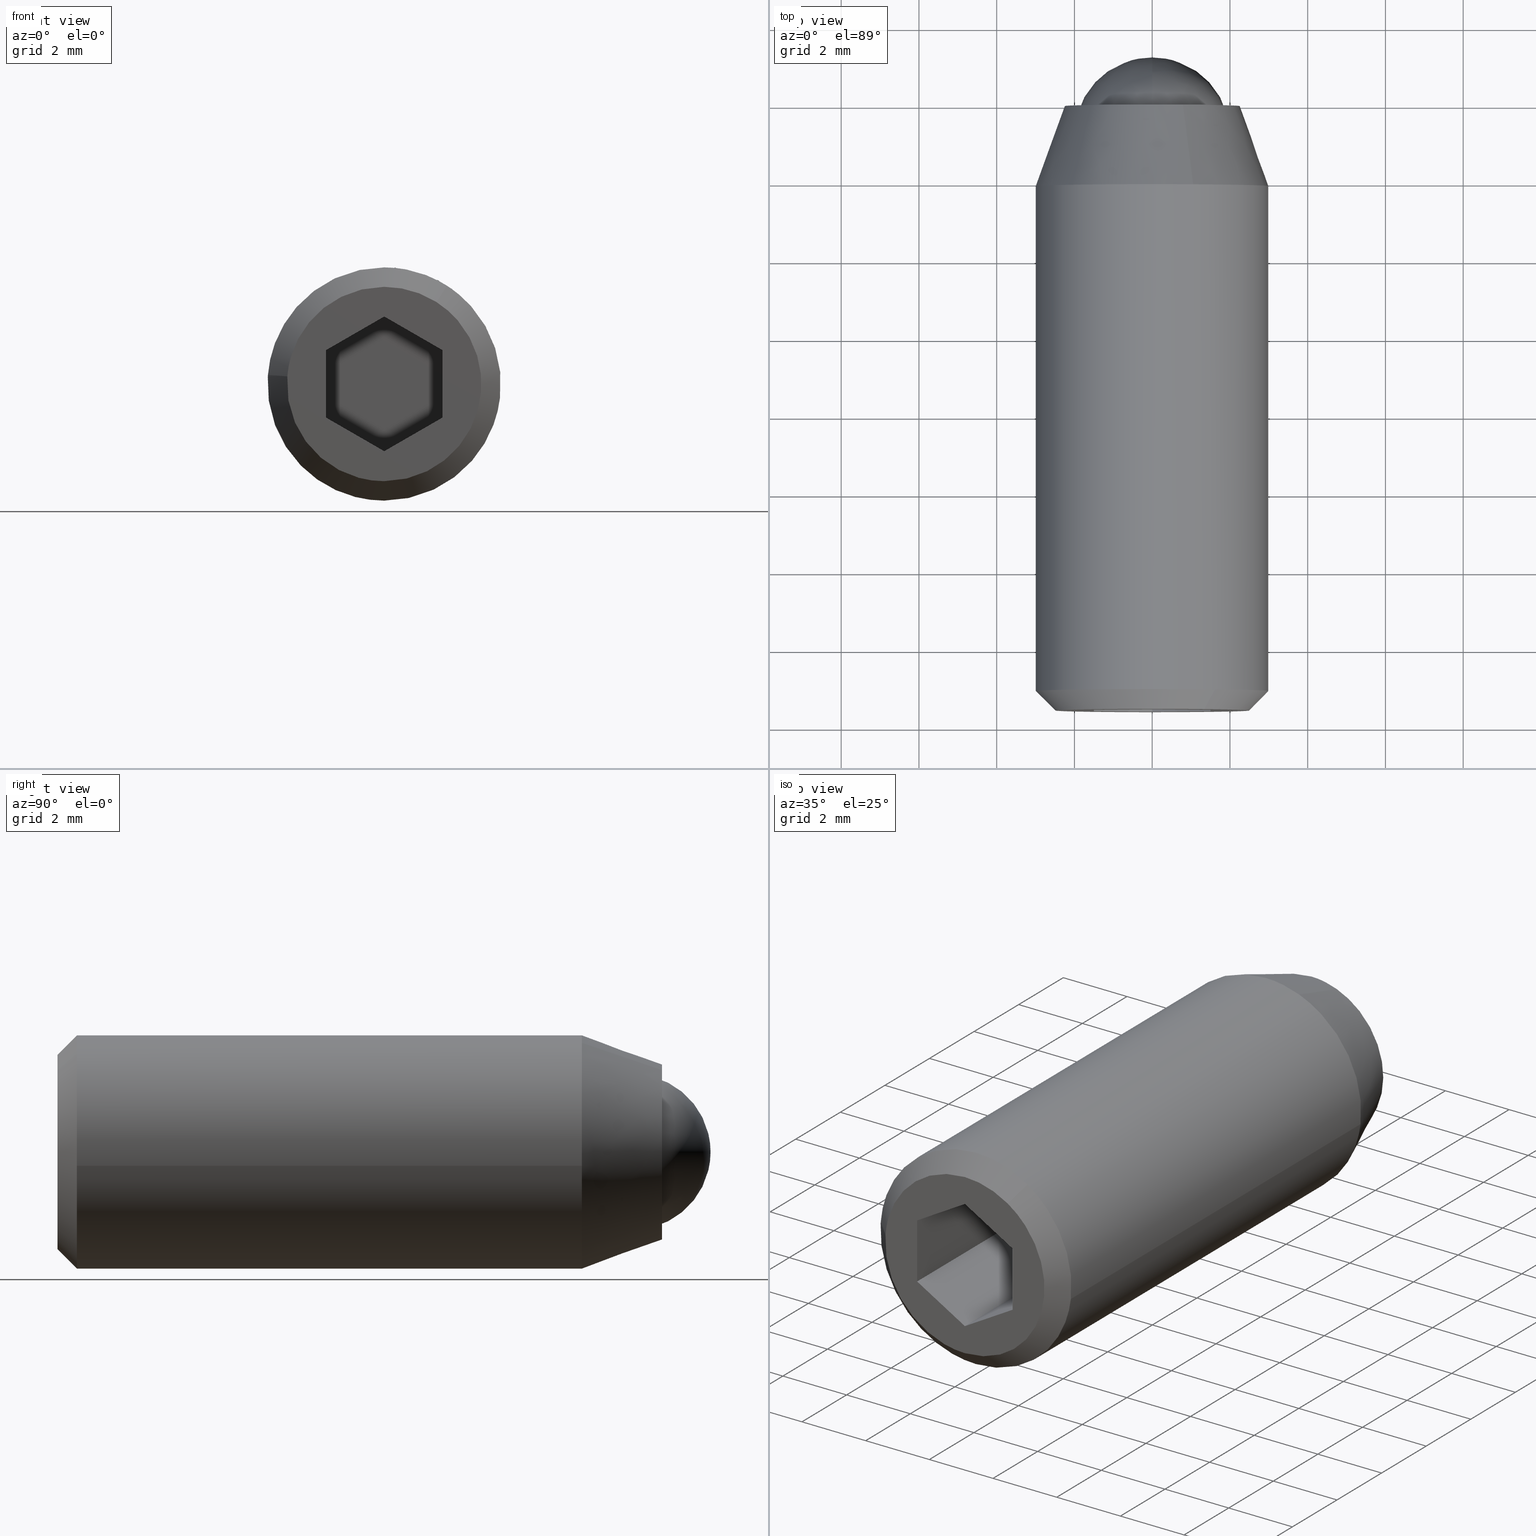
[diagram: canonical four-view strip — front | top / right | iso, engineering-drawing reading convention]
A machine part, canonical four-view strip (front | top / right | iso — engineering-drawing reading convention). The complete STEP part file that produces these views, byte-faithful:
ISO-10303-21;
HEADER;
/****************************************************************
 * Generated by software with PDE/Lib inside                    *
 * PDElib Version 4.4.1-0003, patched  Thursday August 19 11:58 *
 * International Technegroup Inc. (www.iti-oh.com)              *
 ****************************************************************/
FILE_DESCRIPTION((''),'2;1');
FILE_NAME('','2005-07-15T11:41:51',(''),(''),'','CADfix','');
FILE_SCHEMA(('AUTOMOTIVE_DESIGN'));
ENDSEC;
DATA;
#5=APPLICATION_CONTEXT('automotive design');
#6=APPLICATION_PROTOCOL_DEFINITION('Draft International Standard','automotive_design',1998,#5);
#7=PRODUCT_CONTEXT('None',#5,'mechanical');
#8=PRODUCT('body','','None',(#7));
#9=PRODUCT_RELATED_PRODUCT_CATEGORY('part','description',(#8));
#10=PRODUCT_DEFINITION_FORMATION('None','None',#8);
#11=PRODUCT_DEFINITION_CONTEXT('part definition',#5,'design');
#12=PRODUCT_DEFINITION('None','None',#10,#11);
#18=(NAMED_UNIT(*)PLANE_ANGLE_UNIT()SI_UNIT($,.RADIAN.));
#19=DIMENSIONAL_EXPONENTS(0.0,0.0,0.0,0.0,0.0,0.0,0.0);
#20=PLANE_ANGLE_MEASURE_WITH_UNIT(PLANE_ANGLE_MEASURE(0.017453292500000),#18);
#24=(CONVERSION_BASED_UNIT('DEGREE',#20)NAMED_UNIT(#19)PLANE_ANGLE_UNIT());
#28=(NAMED_UNIT(*)SI_UNIT($,.STERADIAN.)SOLID_ANGLE_UNIT());
#32=(LENGTH_UNIT()NAMED_UNIT(*)SI_UNIT(.MILLI.,.METRE.));
#34=UNCERTAINTY_MEASURE_WITH_UNIT(LENGTH_MEASURE(0.001000000000000),#32,'DISTANCE_ACCURACY_VALUE','');
#36=(GEOMETRIC_REPRESENTATION_CONTEXT(3)GLOBAL_UNCERTAINTY_ASSIGNED_CONTEXT((#34))GLOBAL_UNIT_ASSIGNED_CONTEXT((#24,#28,#32))REPRESENTATION_CONTEXT('None','None'));
#37=AXIS2_PLACEMENT_3D('',#38,#39,#40);
#38=CARTESIAN_POINT('',(0.0,0.0,0.0));
#39=DIRECTION('',(0.0,0.0,1.0));
#40=DIRECTION('',(1.0,0.0,0.0));
#41=ADVANCED_BREP_SHAPE_REPRESENTATION('',(#37,#953,#1164),#36);
#42=PRODUCT_DEFINITION_SHAPE('','',#12);
#43=SHAPE_DEFINITION_REPRESENTATION(#42,#41);
#44=CARTESIAN_POINT('',(-1.986019052727332,0.100000000000000,0.236068469313517));
#45=CARTESIAN_POINT('',(-1.992775230897211,0.100000000000000,0.179229457275955));
#46=CARTESIAN_POINT('',(-1.996269596843733,0.100000000000000,0.122097079069714));
#47=CARTESIAN_POINT('',(-2.118366675913447,0.100000000000000,-1.874172517774020));
#48=CARTESIAN_POINT('',(-0.122097079069714,0.100000000000000,-1.996269596843733));
#49=CARTESIAN_POINT('',(1.874172517774020,0.100000000000000,-2.118366675913447));
#50=CARTESIAN_POINT('',(1.996269596843733,0.100000000000000,-0.122097079069714));
#51=CARTESIAN_POINT('',(-1.986019052727332,-4.102500000000001,0.236068469313517));
#52=CARTESIAN_POINT('',(-1.992775230897211,-4.102500000000000,0.179229457275955));
#53=CARTESIAN_POINT('',(-1.996269596843733,-4.102500000000000,0.122097079069714));
#54=CARTESIAN_POINT('',(-2.118366675913447,-4.102499999999999,-1.874172517774020));
#55=CARTESIAN_POINT('',(-0.122097079069714,-4.102500000000000,-1.996269596843733));
#56=CARTESIAN_POINT('',(1.874172517774020,-4.102499999999999,-2.118366675913447));
#57=CARTESIAN_POINT('',(1.996269596843733,-4.102500000000000,-0.122097079069714));
#65=(BOUNDED_SURFACE()B_SPLINE_SURFACE(2,1,((#44,#51),(#45,#52),(#46,#53),(#47,#54),(#48,#55),(#49,#56),(#50,#57)),.UNSPECIFIED.,.F.,.F.,.U.)B_SPLINE_SURFACE_WITH_KNOTS((3,2,2,3),(2,2),(0.0,0.132548339959391,3.446256838944149,6.759965337928908),(0.0,4.202500000000001),.UNSPECIFIED.)GEOMETRIC_REPRESENTATION_ITEM()RATIONAL_B_SPLINE_SURFACE(((0.977505800795127,0.977505800795127),(0.988284271247462,0.988284271247462),(1.0,1.0),(0.707106781186548,0.707106781186548),(1.0,1.0),(0.707106781186548,0.707106781186548),(1.0,1.0)))REPRESENTATION_ITEM('')SURFACE());
#66=CARTESIAN_POINT('',(-1.986019493073748,-3.999999999999974,0.236064764666765));
#67=VERTEX_POINT('',#66);
#68=CARTESIAN_POINT('',(0.0,-4.0,-2.0));
#69=VERTEX_POINT('',#68);
#70=CARTESIAN_POINT('',(-1.986019493073748,-3.999999999999973,0.236064764666765));
#71=CARTESIAN_POINT('',(-2.000000000000000,-4.000000000000000,0.118446367398437));
#72=CARTESIAN_POINT('',(-2.0,-4.0,0.0));
#73=CARTESIAN_POINT('',(-2.000000000000000,-4.000000000000000,-2.000000000000000));
#74=CARTESIAN_POINT('',(0.0,-4.0,-2.0));
#82=(BOUNDED_CURVE()B_SPLINE_CURVE(2,(#70,#71,#72,#73,#74),.UNSPECIFIED.,.F.,.U.)B_SPLINE_CURVE_WITH_KNOTS((3,2,3),(0.229562788768111,0.250000000000000,0.500000000000000),.UNSPECIFIED.)CURVE()GEOMETRIC_REPRESENTATION_ITEM()RATIONAL_B_SPLINE_CURVE((0.956027372096553,0.976056317674886,1.0,0.707106781186548,1.0))REPRESENTATION_ITEM(''));
#83=EDGE_CURVE('',#67,#69,#82,.T.);
#84=ORIENTED_EDGE('',*,*,#83,.T.);
#85=CARTESIAN_POINT('',(1.996269745764242,-4.000000000000014,-0.122094644192184));
#86=VERTEX_POINT('',#85);
#87=CARTESIAN_POINT('',(0.0,-4.0,-2.0));
#88=CARTESIAN_POINT('',(1.881414432885071,-4.0,-1.999999999999999));
#89=CARTESIAN_POINT('',(1.996269745764242,-4.000000000000014,-0.122094644192184));
#97=(BOUNDED_CURVE()B_SPLINE_CURVE(2,(#87,#88,#89),.UNSPECIFIED.,.F.,.U.)B_SPLINE_CURVE_WITH_KNOTS((3,3),(0.500000000000000,0.739333172699698),.UNSPECIFIED.)CURVE()GEOMETRIC_REPRESENTATION_ITEM()RATIONAL_B_SPLINE_CURVE((1.0,0.719603746716598,0.976072492724594))REPRESENTATION_ITEM(''));
#98=EDGE_CURVE('',#69,#86,#97,.T.);
#99=ORIENTED_EDGE('',*,*,#98,.T.);
#100=CARTESIAN_POINT('',(1.996269743924191,-9.020562E-017,-0.122094674277944));
#101=VERTEX_POINT('',#100);
#102=CARTESIAN_POINT('',(1.996269743924191,-9.020562E-017,-0.122094674277944));
#103=CARTESIAN_POINT('',(1.996269745764242,-4.000000000000014,-0.122094644192184));
#104=QUASI_UNIFORM_CURVE('',1,(#102,#103),.UNSPECIFIED.,.F.,.U.);
#105=EDGE_CURVE('',#101,#86,#104,.T.);
#106=ORIENTED_EDGE('',*,*,#105,.F.);
#107=CARTESIAN_POINT('',(0.0,0.0,-2.0));
#108=VERTEX_POINT('',#107);
#109=CARTESIAN_POINT('',(0.0,0.0,-2.0));
#110=CARTESIAN_POINT('',(1.881414404477311,0.0,-2.000000000000000));
#111=CARTESIAN_POINT('',(1.996269743924192,-9.020562E-017,-0.122094674277945));
#119=(BOUNDED_CURVE()B_SPLINE_CURVE(2,(#109,#110,#111),.UNSPECIFIED.,.F.,.U.)B_SPLINE_CURVE_WITH_KNOTS((3,3),(0.500000000000000,0.739333170099246),.UNSPECIFIED.)CURVE()GEOMETRIC_REPRESENTATION_ITEM()RATIONAL_B_SPLINE_CURVE((1.0,0.719603749763217,0.976072487151320))REPRESENTATION_ITEM(''));
#120=EDGE_CURVE('',#108,#101,#119,.T.);
#121=ORIENTED_EDGE('',*,*,#120,.F.);
#122=CARTESIAN_POINT('',(-1.986019487645854,-8.518285E-017,0.236064810332502));
#123=VERTEX_POINT('',#122);
#124=CARTESIAN_POINT('',(-1.986019487645855,-8.518285E-017,0.236064810332502));
#125=CARTESIAN_POINT('',(-2.0,0.0,0.118446390472678));
#126=CARTESIAN_POINT('',(-2.0,0.0,0.0));
#127=CARTESIAN_POINT('',(-2.000000000000000,0.0,-2.000000000000000));
#128=CARTESIAN_POINT('',(0.0,0.0,-2.0));
#136=(BOUNDED_CURVE()B_SPLINE_CURVE(2,(#124,#125,#126,#127,#128),.UNSPECIFIED.,.F.,.U.)B_SPLINE_CURVE_WITH_KNOTS((3,2,3),(0.229562784882116,0.250000000000000,0.500000000000000),.UNSPECIFIED.)CURVE()GEOMETRIC_REPRESENTATION_ITEM()RATIONAL_B_SPLINE_CURVE((0.956027364479822,0.976056313122160,1.0,0.707106781186548,1.0))REPRESENTATION_ITEM(''));
#137=EDGE_CURVE('',#123,#108,#136,.T.);
#138=ORIENTED_EDGE('',*,*,#137,.F.);
#139=CARTESIAN_POINT('',(-1.986019487645854,-8.518285E-017,0.236064810332502));
#140=CARTESIAN_POINT('',(-1.986019493073748,-3.999999999999974,0.236064764666765));
#141=QUASI_UNIFORM_CURVE('',1,(#139,#140),.UNSPECIFIED.,.F.,.U.);
#142=EDGE_CURVE('',#123,#67,#141,.T.);
#143=ORIENTED_EDGE('',*,*,#142,.T.);
#144=EDGE_LOOP('',(#84,#99,#106,#121,#138,#143));
#145=FACE_OUTER_BOUND('',#144,.T.);
#146=ADVANCED_FACE('',(#145),#65,.F.);
#147=CARTESIAN_POINT('',(1.994587221590706,0.100000000000000,-0.149603671313293));
#148=CARTESIAN_POINT('',(1.995426001830168,0.100000000000000,-0.135889735621846));
#149=CARTESIAN_POINT('',(2.118366675913447,0.100000000000000,1.874172517774020));
#150=CARTESIAN_POINT('',(0.122097079069714,0.100000000000000,1.996269596843733));
#151=CARTESIAN_POINT('',(-1.763086981679002,0.100000000000000,2.111572393465055));
#152=CARTESIAN_POINT('',(-1.987688278664403,0.100000000000000,0.222025448134240));
#153=CARTESIAN_POINT('',(-1.989348533087463,0.100000000000000,0.208057903353018));
#154=CARTESIAN_POINT('',(1.994587221590706,-4.102500000000001,-0.149603671313293));
#155=CARTESIAN_POINT('',(1.995426001830168,-4.102499999999997,-0.135889735621846));
#156=CARTESIAN_POINT('',(2.118366675913447,-4.102499999999999,1.874172517774020));
#157=CARTESIAN_POINT('',(0.122097079069714,-4.102500000000000,1.996269596843733));
#158=CARTESIAN_POINT('',(-1.763086981679002,-4.102500000000000,2.111572393465055));
#159=CARTESIAN_POINT('',(-1.987688278664403,-4.102500000000001,0.222025448134240));
#160=CARTESIAN_POINT('',(-1.989348533087463,-4.102500000000001,0.208057903353018));
#168=(BOUNDED_SURFACE()B_SPLINE_SURFACE(2,1,((#147,#154),(#148,#155),(#149,#156),(#150,#157),(#151,#158),(#152,#159),(#153,#160)),.UNSPECIFIED.,.F.,.F.,.U.)B_SPLINE_SURFACE_WITH_KNOTS((3,1,2,1,3),(2,2),(0.0,0.032471527160709,3.346180026145468,6.527340185170837,6.559818807483092),(0.0,4.202500000000002),.UNSPECIFIED.)GEOMETRIC_REPRESENTATION_ITEM()RATIONAL_B_SPLINE_SURFACE(((1.005740209262705,1.005740209262705),(1.002870104631353,1.002870104631353),(0.707106781186548,0.707106781186548),(1.0,1.0),(0.718822509939086,0.718822509939086),(0.980146874014395,0.980146874014395),(0.982787947233663,0.982787947233663)))REPRESENTATION_ITEM('')SURFACE());
#169=CARTESIAN_POINT('',(0.0,-4.0,2.0));
#170=VERTEX_POINT('',#169);
#171=CARTESIAN_POINT('',(0.0,-4.0,2.0));
#172=CARTESIAN_POINT('',(-1.776352388767066,-4.0,2.000000000000000));
#173=CARTESIAN_POINT('',(-1.986019493073748,-3.999999999999973,0.236064764666765));
#181=(BOUNDED_CURVE()B_SPLINE_CURVE(2,(#171,#172,#173),.UNSPECIFIED.,.F.,.U.)B_SPLINE_CURVE_WITH_KNOTS((3,3),(0.0,0.229562788768111),.UNSPECIFIED.)CURVE()GEOMETRIC_REPRESENTATION_ITEM()RATIONAL_B_SPLINE_CURVE((1.0,0.731050463511661,0.956027372096553))REPRESENTATION_ITEM(''));
#182=EDGE_CURVE('',#170,#67,#181,.T.);
#183=ORIENTED_EDGE('',*,*,#182,.T.);
#184=ORIENTED_EDGE('',*,*,#142,.F.);
#185=CARTESIAN_POINT('',(0.0,0.0,2.0));
#186=VERTEX_POINT('',#185);
#187=CARTESIAN_POINT('',(0.0,0.0,2.0));
#188=CARTESIAN_POINT('',(-1.776352347634816,0.0,2.000000000000000));
#189=CARTESIAN_POINT('',(-1.986019487645855,-8.518285E-017,0.236064810332502));
#197=(BOUNDED_CURVE()B_SPLINE_CURVE(2,(#187,#188,#189),.UNSPECIFIED.,.F.,.U.)B_SPLINE_CURVE_WITH_KNOTS((3,3),(0.0,0.229562784882116),.UNSPECIFIED.)CURVE()GEOMETRIC_REPRESENTATION_ITEM()RATIONAL_B_SPLINE_CURVE((1.0,0.731050468064387,0.956027364479822))REPRESENTATION_ITEM(''));
#198=EDGE_CURVE('',#186,#123,#197,.T.);
#199=ORIENTED_EDGE('',*,*,#198,.F.);
#200=CARTESIAN_POINT('',(1.996269743924192,-9.020562E-017,-0.122094674277945));
#201=CARTESIAN_POINT('',(2.0,0.0,-0.061104320830003));
#202=CARTESIAN_POINT('',(2.0,0.0,0.0));
#203=CARTESIAN_POINT('',(2.000000000000000,0.0,2.000000000000000));
#204=CARTESIAN_POINT('',(0.0,0.0,2.0));
#212=(BOUNDED_CURVE()B_SPLINE_CURVE(2,(#200,#201,#202,#203,#204),.UNSPECIFIED.,.F.,.U.)B_SPLINE_CURVE_WITH_KNOTS((3,2,3),(0.739333170099246,0.750000000000000,1.0),.UNSPECIFIED.)CURVE()GEOMETRIC_REPRESENTATION_ITEM()RATIONAL_B_SPLINE_CURVE((0.976072487151320,0.987503031423331,1.0,0.707106781186548,1.0))REPRESENTATION_ITEM(''));
#213=EDGE_CURVE('',#101,#186,#212,.T.);
#214=ORIENTED_EDGE('',*,*,#213,.F.);
#215=ORIENTED_EDGE('',*,*,#105,.T.);
#216=CARTESIAN_POINT('',(1.996269745764242,-4.000000000000014,-0.122094644192184));
#217=CARTESIAN_POINT('',(2.000000000000000,-4.000000000000000,-0.061104305744947));
#218=CARTESIAN_POINT('',(2.0,-4.0,0.0));
#219=CARTESIAN_POINT('',(2.000000000000000,-4.000000000000000,2.000000000000000));
#220=CARTESIAN_POINT('',(0.0,-4.0,2.0));
#228=(BOUNDED_CURVE()B_SPLINE_CURVE(2,(#216,#217,#218,#219,#220),.UNSPECIFIED.,.F.,.U.)B_SPLINE_CURVE_WITH_KNOTS((3,2,3),(0.739333172699698,0.750000000000000,1.0),.UNSPECIFIED.)CURVE()GEOMETRIC_REPRESENTATION_ITEM()RATIONAL_B_SPLINE_CURVE((0.976072492724594,0.987503034469949,1.0,0.707106781186548,1.0))REPRESENTATION_ITEM(''));
#229=EDGE_CURVE('',#86,#170,#228,.T.);
#230=ORIENTED_EDGE('',*,*,#229,.T.);
#231=EDGE_LOOP('',(#183,#184,#199,#214,#215,#230));
#232=FACE_OUTER_BOUND('',#231,.T.);
#233=ADVANCED_FACE('',(#232),#168,.F.);
#234=CARTESIAN_POINT('',(1.337903848697430,-15.562499999999998,2.097062121550191));
#235=CARTESIAN_POINT('',(2.597013232677687,-15.562499999999996,1.293763414541469));
#236=CARTESIAN_POINT('',(2.479831867661154,-15.562500000000000,-0.195167000623016));
#237=CARTESIAN_POINT('',(2.284664867038139,-15.562500000000004,-2.674998868284170));
#238=CARTESIAN_POINT('',(-0.195167000623016,-15.562500000000000,-2.479831867661154));
#239=CARTESIAN_POINT('',(-2.674998868284169,-15.562500000000004,-2.284664867038139));
#240=CARTESIAN_POINT('',(-2.479831867661154,-15.562500000000000,0.195167000623015));
#241=CARTESIAN_POINT('',(1.620443593629642,-15.037187499999991,2.539921597219273));
#242=CARTESIAN_POINT('',(3.145452836211760,-15.037187499999998,1.566981542662603));
#243=CARTESIAN_POINT('',(3.003525004537841,-15.037187500000000,-0.236382544347550));
#244=CARTESIAN_POINT('',(2.767142460190291,-15.037187500000002,-3.239907548885392));
#245=CARTESIAN_POINT('',(-0.236382544347550,-15.037187500000000,-3.003525004537841));
#246=CARTESIAN_POINT('',(-3.239907548885390,-15.037187500000002,-2.767142460190291));
#247=CARTESIAN_POINT('',(-3.003525004537841,-15.037187500000000,0.236382544347549));
#255=(BOUNDED_SURFACE()B_SPLINE_SURFACE(2,1,((#234,#241),(#235,#242),(#236,#243),(#237,#244),(#238,#245),(#239,#246),(#240,#247)),.UNSPECIFIED.,.F.,.F.,.U.)B_SPLINE_SURFACE_WITH_KNOTS((3,2,2,3),(2,2),(0.0,3.394418011613159,8.386209205161924,13.378000398710689),(0.0,1.0),.UNSPECIFIED.)GEOMETRIC_REPRESENTATION_ITEM()RATIONAL_B_SPLINE_SURFACE(((0.872532871172386,0.872532871172386),(0.800832611206852,0.800832611206852),(1.0,1.0),(0.707106781186548,0.707106781186548),(1.0,1.0),(0.707106781186548,0.707106781186548),(1.0,1.0)))REPRESENTATION_ITEM('')SURFACE());
#256=CARTESIAN_POINT('',(2.979028827039997,-15.050000000000001,-0.354100617989129));
#257=VERTEX_POINT('',#256);
#258=CARTESIAN_POINT('',(1.613552380348581,-15.049999999999390,2.529120146587553));
#259=VERTEX_POINT('',#258);
#260=CARTESIAN_POINT('',(2.979028827039997,-15.050000000000002,-0.354100617989129));
#261=CARTESIAN_POINT('',(3.000000000000000,-15.049999999999997,-0.177671304938903));
#262=CARTESIAN_POINT('',(3.0,-15.050000000000001,-6.765950E-016));
#263=CARTESIAN_POINT('',(3.000000000000000,-15.050000000000006,1.644580968029252));
#264=CARTESIAN_POINT('',(1.613552380348581,-15.049999999999393,2.529120146587553));
#272=(BOUNDED_CURVE()B_SPLINE_CURVE(2,(#260,#261,#262,#263,#264),.UNSPECIFIED.,.F.,.U.)B_SPLINE_CURVE_WITH_KNOTS((3,2,3),(0.229562591855431,0.250000000000000,0.407950112626405),.UNSPECIFIED.)CURVE()GEOMETRIC_REPRESENTATION_ITEM()RATIONAL_B_SPLINE_CURVE((0.956026986138842,0.976056086977332,1.0,0.814949932403620,0.863729296954216))REPRESENTATION_ITEM(''));
#273=EDGE_CURVE('',#257,#259,#272,.T.);
#274=ORIENTED_EDGE('',*,*,#273,.T.);
#275=CARTESIAN_POINT('',(1.344626983623041,-15.549999999999541,2.107600122156740));
#276=VERTEX_POINT('',#275);
#277=CARTESIAN_POINT('',(1.344626983623041,-15.549999999999541,2.107600122156740));
#278=CARTESIAN_POINT('',(1.613552380348581,-15.049999999999390,2.529120146587553));
#279=QUASI_UNIFORM_CURVE('',1,(#277,#278),.UNSPECIFIED.,.F.,.U.);
#280=EDGE_CURVE('',#276,#259,#279,.T.);
#281=ORIENTED_EDGE('',*,*,#280,.F.);
#282=CARTESIAN_POINT('',(0.0,-15.550000000000001,-2.500000000000001));
#283=VERTEX_POINT('',#282);
#284=CARTESIAN_POINT('',(0.0,-15.550000000000001,-2.500000000000001));
#285=CARTESIAN_POINT('',(2.500000000000000,-15.549999999999994,-2.500000000000001));
#286=CARTESIAN_POINT('',(2.500000000000000,-15.550000000000001,-6.765950E-016));
#287=CARTESIAN_POINT('',(2.500000000000000,-15.549999999999994,1.370484140025540));
#288=CARTESIAN_POINT('',(1.344626983623042,-15.549999999999534,2.107600122156739));
#296=(BOUNDED_CURVE()B_SPLINE_CURVE(2,(#284,#285,#286,#287,#288),.UNSPECIFIED.,.F.,.U.)B_SPLINE_CURVE_WITH_KNOTS((3,2,3),(0.0,0.250000000000000,0.407950112626514),.UNSPECIFIED.)CURVE()GEOMETRIC_REPRESENTATION_ITEM()RATIONAL_B_SPLINE_CURVE((1.0,0.707106781186548,1.0,0.814949932403492,0.863729296954284))REPRESENTATION_ITEM(''));
#297=EDGE_CURVE('',#283,#276,#296,.T.);
#298=ORIENTED_EDGE('',*,*,#297,.F.);
#299=CARTESIAN_POINT('',(-2.492293334334823,-15.549999999994959,0.196147739358426));
#300=VERTEX_POINT('',#299);
#301=CARTESIAN_POINT('',(-2.492293334334823,-15.549999999994961,0.196147739358426));
#302=CARTESIAN_POINT('',(-2.500000000000000,-15.549999999999995,0.098225267557770));
#303=CARTESIAN_POINT('',(-2.500000000000000,-15.550000000000001,-6.765950E-016));
#304=CARTESIAN_POINT('',(-2.500000000000000,-15.549999999999994,-2.500000000000001));
#305=CARTESIAN_POINT('',(0.0,-15.550000000000001,-2.500000000000001));
#313=(BOUNDED_CURVE()B_SPLINE_CURVE(2,(#301,#302,#303,#304,#305),.UNSPECIFIED.,.F.,.U.)B_SPLINE_CURVE_WITH_KNOTS((3,2,3),(0.736331300627482,0.750000000000000,1.0),.UNSPECIFIED.)CURVE()GEOMETRIC_REPRESENTATION_ITEM()RATIONAL_B_SPLINE_CURVE((0.969723356160786,0.983986122575159,1.0,0.707106781186548,1.0))REPRESENTATION_ITEM(''));
#314=EDGE_CURVE('',#300,#283,#313,.T.);
#315=ORIENTED_EDGE('',*,*,#314,.F.);
#316=CARTESIAN_POINT('',(-2.990751486467367,-15.050000547912260,0.235376844060400));
#317=VERTEX_POINT('',#316);
#318=CARTESIAN_POINT('',(-2.492293334334823,-15.549999999994959,0.196147739358426));
#319=CARTESIAN_POINT('',(-2.990751486467367,-15.050000547912260,0.235376844060400));
#320=QUASI_UNIFORM_CURVE('',1,(#318,#319),.UNSPECIFIED.,.F.,.U.);
#321=EDGE_CURVE('',#300,#317,#320,.T.);
#322=ORIENTED_EDGE('',*,*,#321,.T.);
#323=CARTESIAN_POINT('',(-2.994404631648551,-15.049999999999990,0.183141753695629));
#324=VERTEX_POINT('',#323);
#325=CARTESIAN_POINT('',(-2.990751486467367,-15.050000547912251,0.235376844060400));
#326=CARTESIAN_POINT('',(-2.992806284083604,-15.049999999999999,0.209275058976257));
#327=CARTESIAN_POINT('',(-2.994404631648550,-15.049999999999997,0.183141753695629));
#335=(BOUNDED_CURVE()B_SPLINE_CURVE(2,(#325,#326,#327),.UNSPECIFIED.,.F.,.U.)B_SPLINE_CURVE_WITH_KNOTS((3,3),(0.736331346502731,0.739333184949944),.UNSPECIFIED.)CURVE()GEOMETRIC_REPRESENTATION_ITEM()RATIONAL_B_SPLINE_CURVE((0.969723451898952,0.972855757106757,0.976072518979253))REPRESENTATION_ITEM(''));
#336=EDGE_CURVE('',#317,#324,#335,.T.);
#337=ORIENTED_EDGE('',*,*,#336,.T.);
#338=CARTESIAN_POINT('',(0.0,-15.050000000000001,-3.000000000000001));
#339=VERTEX_POINT('',#338);
#340=CARTESIAN_POINT('',(-2.994404631648550,-15.049999999999997,0.183141753695629));
#341=CARTESIAN_POINT('',(-3.0,-15.050000000000001,0.091656352023072));
#342=CARTESIAN_POINT('',(-3.0,-15.050000000000001,-6.765950E-016));
#343=CARTESIAN_POINT('',(-3.0,-15.049999999999999,-3.0));
#344=CARTESIAN_POINT('',(0.0,-15.050000000000001,-3.000000000000001));
#352=(BOUNDED_CURVE()B_SPLINE_CURVE(2,(#340,#341,#342,#343,#344),.UNSPECIFIED.,.F.,.U.)B_SPLINE_CURVE_WITH_KNOTS((3,2,3),(0.739333184949944,0.750000000000000,1.0),.UNSPECIFIED.)CURVE()GEOMETRIC_REPRESENTATION_ITEM()RATIONAL_B_SPLINE_CURVE((0.976072518979253,0.987503048822005,1.0,0.707106781186548,1.0))REPRESENTATION_ITEM(''));
#353=EDGE_CURVE('',#324,#339,#352,.T.);
#354=ORIENTED_EDGE('',*,*,#353,.T.);
#355=CARTESIAN_POINT('',(0.0,-15.050000000000001,-3.000000000000001));
#356=CARTESIAN_POINT('',(2.664525456746725,-15.050000000000004,-3.000000000000001));
#357=CARTESIAN_POINT('',(2.979028827039997,-15.050000000000002,-0.354100617989129));
#365=(BOUNDED_CURVE()B_SPLINE_CURVE(2,(#355,#356,#357),.UNSPECIFIED.,.F.,.U.)B_SPLINE_CURVE_WITH_KNOTS((3,3),(0.0,0.229562591855431),.UNSPECIFIED.)CURVE()GEOMETRIC_REPRESENTATION_ITEM()RATIONAL_B_SPLINE_CURVE((1.0,0.731050694209216,0.956026986138842))REPRESENTATION_ITEM(''));
#366=EDGE_CURVE('',#339,#257,#365,.T.);
#367=ORIENTED_EDGE('',*,*,#366,.T.);
#368=EDGE_LOOP('',(#274,#281,#298,#315,#322,#337,#354,#367));
#369=FACE_OUTER_BOUND('',#368,.T.);
#370=ADVANCED_FACE('',(#369),#255,.T.);
#371=CARTESIAN_POINT('',(-2.479831867661154,-15.562500000000000,0.195167000623015));
#372=CARTESIAN_POINT('',(-2.284664867038139,-15.562500000000004,2.674998868284169));
#373=CARTESIAN_POINT('',(0.195167000623016,-15.562500000000000,2.479831867661153));
#374=CARTESIAN_POINT('',(0.814319478020443,-15.562500000000004,2.431103510905284));
#375=CARTESIAN_POINT('',(1.337903848697430,-15.562499999999998,2.097062121550191));
#376=CARTESIAN_POINT('',(-3.003525004537841,-15.037187500000000,0.236382544347549));
#377=CARTESIAN_POINT('',(-2.767142460190291,-15.037187500000002,3.239907548885390));
#378=CARTESIAN_POINT('',(0.236382544347550,-15.037187500000000,3.003525004537840));
#379=CARTESIAN_POINT('',(0.986288201959183,-15.037187499999991,2.944506149326367));
#380=CARTESIAN_POINT('',(1.620443593629642,-15.037187499999991,2.539921597219273));
#388=(BOUNDED_SURFACE()B_SPLINE_SURFACE(2,1,((#371,#376),(#372,#377),(#373,#378),(#374,#379),(#375,#380)),.UNSPECIFIED.,.F.,.F.,.U.)B_SPLINE_SURFACE_WITH_KNOTS((3,2,3),(2,2),(0.0,4.991791193548763,6.589164375484368),(0.0,1.0),.UNSPECIFIED.)GEOMETRIC_REPRESENTATION_ITEM()RATIONAL_B_SPLINE_SURFACE(((1.0,1.0),(0.707106781186548,0.707106781186548),(1.0,1.0),(0.906274169979695,0.906274169979695),(0.872532871172386,0.872532871172386)))REPRESENTATION_ITEM('')SURFACE());
#389=CARTESIAN_POINT('',(0.0,-15.050000000000001,2.999999999999999));
#390=VERTEX_POINT('',#389);
#391=CARTESIAN_POINT('',(1.613552380348582,-15.049999999999390,2.529120146587553));
#392=CARTESIAN_POINT('',(0.875484166150211,-15.050000000000001,3.000000000000000));
#393=CARTESIAN_POINT('',(0.0,-15.050000000000001,2.999999999999999));
#401=(BOUNDED_CURVE()B_SPLINE_CURVE(2,(#391,#392,#393),.UNSPECIFIED.,.F.,.U.)B_SPLINE_CURVE_WITH_KNOTS((3,3),(0.407950112626405,0.500000000000000),.UNSPECIFIED.)CURVE()GEOMETRIC_REPRESENTATION_ITEM()RATIONAL_B_SPLINE_CURVE((0.863729296954217,0.892156848782928,1.0))REPRESENTATION_ITEM(''));
#402=EDGE_CURVE('',#259,#390,#401,.T.);
#403=ORIENTED_EDGE('',*,*,#402,.T.);
#404=CARTESIAN_POINT('',(0.0,-15.050000000000001,2.999999999999999));
#405=CARTESIAN_POINT('',(-2.773172219317691,-15.049999999999995,2.999999999999999));
#406=CARTESIAN_POINT('',(-2.990751486467367,-15.050000547912258,0.235376844060400));
#414=(BOUNDED_CURVE()B_SPLINE_CURVE(2,(#404,#405,#406),.UNSPECIFIED.,.F.,.U.)B_SPLINE_CURVE_WITH_KNOTS((3,3),(0.500000000000000,0.736331346502732),.UNSPECIFIED.)CURVE()GEOMETRIC_REPRESENTATION_ITEM()RATIONAL_B_SPLINE_CURVE((1.0,0.723120604865190,0.969723451898952))REPRESENTATION_ITEM(''));
#415=EDGE_CURVE('',#390,#317,#414,.T.);
#416=ORIENTED_EDGE('',*,*,#415,.T.);
#417=ORIENTED_EDGE('',*,*,#321,.F.);
#418=CARTESIAN_POINT('',(0.0,-15.550000000000001,2.499999999999999));
#419=VERTEX_POINT('',#418);
#420=CARTESIAN_POINT('',(0.0,-15.550000000000001,2.499999999999999));
#421=CARTESIAN_POINT('',(-2.310976229074044,-15.549999999999999,2.499999999999999));
#422=CARTESIAN_POINT('',(-2.492293334334823,-15.549999999994958,0.196147739358426));
#430=(BOUNDED_CURVE()B_SPLINE_CURVE(2,(#420,#421,#422),.UNSPECIFIED.,.F.,.U.)B_SPLINE_CURVE_WITH_KNOTS((3,3),(0.500000000000000,0.736331300627481),.UNSPECIFIED.)CURVE()GEOMETRIC_REPRESENTATION_ITEM()RATIONAL_B_SPLINE_CURVE((1.0,0.723120658611389,0.969723356160785))REPRESENTATION_ITEM(''));
#431=EDGE_CURVE('',#419,#300,#430,.T.);
#432=ORIENTED_EDGE('',*,*,#431,.F.);
#433=CARTESIAN_POINT('',(1.344626983623041,-15.549999999999541,2.107600122156740));
#434=CARTESIAN_POINT('',(0.729570138457539,-15.549999999999995,2.500000000000000));
#435=CARTESIAN_POINT('',(0.0,-15.550000000000001,2.499999999999999));
#443=(BOUNDED_CURVE()B_SPLINE_CURVE(2,(#433,#434,#435),.UNSPECIFIED.,.F.,.U.)B_SPLINE_CURVE_WITH_KNOTS((3,3),(0.407950112626514,0.500000000000000),.UNSPECIFIED.)CURVE()GEOMETRIC_REPRESENTATION_ITEM()RATIONAL_B_SPLINE_CURVE((0.863729296954284,0.892156848783056,1.0))REPRESENTATION_ITEM(''));
#444=EDGE_CURVE('',#276,#419,#443,.T.);
#445=ORIENTED_EDGE('',*,*,#444,.F.);
#446=ORIENTED_EDGE('',*,*,#280,.T.);
#447=EDGE_LOOP('',(#403,#416,#417,#432,#445,#446));
#448=FACE_OUTER_BOUND('',#447,.T.);
#449=ADVANCED_FACE('',(#448),#388,.T.);
#450=CARTESIAN_POINT('',(0.784547605361196,0.051515200000000,2.088770360145418));
#451=CARTESIAN_POINT('',(0.470770214140005,0.051515200000000,2.206625968208495));
#452=CARTESIAN_POINT('',(0.136214553837150,0.051515200000000,2.227088268978792));
#453=CARTESIAN_POINT('',(-2.090873715141643,0.051515200000000,2.363302822815943));
#454=CARTESIAN_POINT('',(-2.227088268978793,0.051515200000000,0.136214553837149));
#455=CARTESIAN_POINT('',(1.061611581120054,-2.113411080000000,2.826422245734585));
#456=CARTESIAN_POINT('',(0.637023308671380,-2.113411080000000,2.985898710342624));
#457=CARTESIAN_POINT('',(0.184318895223757,-2.113411080000000,3.013587298422769));
#458=CARTESIAN_POINT('',(-2.829268403199012,-2.113411080000000,3.197906193646526));
#459=CARTESIAN_POINT('',(-3.013587298422770,-2.113411080000000,0.184318895223756));
#467=(BOUNDED_SURFACE()B_SPLINE_SURFACE(2,1,((#450,#455),(#451,#456),(#452,#457),(#453,#458),(#454,#459)),.UNSPECIFIED.,.F.,.F.,.U.)B_SPLINE_SURFACE_WITH_KNOTS((3,2,3),(2,2),(0.0,1.000481083216914,6.002886499301483),(0.0,2.303866434672635),.UNSPECIFIED.)GEOMETRIC_REPRESENTATION_ITEM()RATIONAL_B_SPLINE_SURFACE(((0.906274169979695,0.906274169979695),(0.941421356237309,0.941421356237309),(1.0,1.0),(0.707106781186548,0.707106781186548),(1.0,1.0)))REPRESENTATION_ITEM('')SURFACE());
#468=CARTESIAN_POINT('',(1.054853923181420,-2.060608000001297,2.808430736327957));
#469=VERTEX_POINT('',#468);
#470=CARTESIAN_POINT('',(0.0,-2.060608000000000,2.999999999999999));
#471=VERTEX_POINT('',#470);
#472=CARTESIAN_POINT('',(1.054853923181420,-2.060608000001297,2.808430736327958));
#473=CARTESIAN_POINT('',(0.544822158207495,-2.060608000000000,2.999999999999999));
#474=CARTESIAN_POINT('',(0.0,-2.060608000000000,2.999999999999999));
#482=(BOUNDED_CURVE()B_SPLINE_CURVE(2,(#472,#473,#474),.UNSPECIFIED.,.F.,.U.)B_SPLINE_CURVE_WITH_KNOTS((3,3),(0.440284170898174,0.500000000000000),.UNSPECIFIED.)CURVE()GEOMETRIC_REPRESENTATION_ITEM()RATIONAL_B_SPLINE_CURVE((0.893499554634866,0.930038554401009,1.0))REPRESENTATION_ITEM(''));
#483=EDGE_CURVE('',#469,#471,#482,.T.);
#484=ORIENTED_EDGE('',*,*,#483,.F.);
#485=CARTESIAN_POINT('',(0.791140442385241,-8.117313E-013,2.106323052246216));
#486=VERTEX_POINT('',#485);
#487=CARTESIAN_POINT('',(0.791140442385241,-8.117313E-013,2.106323052246216));
#488=CARTESIAN_POINT('',(1.054853923181420,-2.060608000001297,2.808430736327957));
#489=QUASI_UNIFORM_CURVE('',1,(#487,#488),.UNSPECIFIED.,.F.,.U.);
#490=EDGE_CURVE('',#486,#469,#489,.T.);
#491=ORIENTED_EDGE('',*,*,#490,.F.);
#492=CARTESIAN_POINT('',(0.0,0.0,2.249999999999999));
#493=VERTEX_POINT('',#492);
#494=CARTESIAN_POINT('',(0.791140442385241,-8.117313E-013,2.106323052246217));
#495=CARTESIAN_POINT('',(0.408616618654734,0.0,2.250000000000000));
#496=CARTESIAN_POINT('',(0.0,0.0,2.249999999999999));
#504=(BOUNDED_CURVE()B_SPLINE_CURVE(2,(#494,#495,#496),.UNSPECIFIED.,.F.,.U.)B_SPLINE_CURVE_WITH_KNOTS((3,3),(0.440284170898295,0.500000000000000),.UNSPECIFIED.)CURVE()GEOMETRIC_REPRESENTATION_ITEM()RATIONAL_B_SPLINE_CURVE((0.893499554635014,0.930038554401150,1.0))REPRESENTATION_ITEM(''));
#505=EDGE_CURVE('',#486,#493,#504,.T.);
#506=ORIENTED_EDGE('',*,*,#505,.T.);
#507=CARTESIAN_POINT('',(-2.245803296449280,-2.592159E-012,0.137359213967615));
#508=VERTEX_POINT('',#507);
#509=CARTESIAN_POINT('',(0.0,0.0,2.249999999999999));
#510=CARTESIAN_POINT('',(-2.116588650511138,0.0,2.250000000000000));
#511=CARTESIAN_POINT('',(-2.245803296449280,-2.592159E-012,0.137359213967615));
#519=(BOUNDED_CURVE()B_SPLINE_CURVE(2,(#509,#510,#511),.UNSPECIFIED.,.F.,.U.)B_SPLINE_CURVE_WITH_KNOTS((3,3),(0.500000000000000,0.739332962239798),.UNSPECIFIED.)CURVE()GEOMETRIC_REPRESENTATION_ITEM()RATIONAL_B_SPLINE_CURVE((1.0,0.719603993285709,0.976072041668550))REPRESENTATION_ITEM(''));
#520=EDGE_CURVE('',#493,#508,#519,.T.);
#521=ORIENTED_EDGE('',*,*,#520,.T.);
#522=CARTESIAN_POINT('',(-2.994404511037095,-2.060607997349454,0.183143709914920));
#523=VERTEX_POINT('',#522);
#524=CARTESIAN_POINT('',(-2.245803296449280,-2.592159E-012,0.137359213967615));
#525=CARTESIAN_POINT('',(-2.994404511037095,-2.060607997349454,0.183143709914920));
#526=QUASI_UNIFORM_CURVE('',1,(#524,#525),.UNSPECIFIED.,.F.,.U.);
#527=EDGE_CURVE('',#508,#523,#526,.T.);
#528=ORIENTED_EDGE('',*,*,#527,.T.);
#529=CARTESIAN_POINT('',(0.0,-2.060608000000000,2.999999999999999));
#530=CARTESIAN_POINT('',(-2.822120002894594,-2.060607999999999,2.999999999999998));
#531=CARTESIAN_POINT('',(-2.994404511037095,-2.060607997349454,0.183143709914921));
#539=(BOUNDED_CURVE()B_SPLINE_CURVE(2,(#529,#530,#531),.UNSPECIFIED.,.F.,.U.)B_SPLINE_CURVE_WITH_KNOTS((3,3),(0.500000000000000,0.739333072223147),.UNSPECIFIED.)CURVE()GEOMETRIC_REPRESENTATION_ITEM()RATIONAL_B_SPLINE_CURVE((1.0,0.719603864432200,0.976072277383916))REPRESENTATION_ITEM(''));
#540=EDGE_CURVE('',#471,#523,#539,.T.);
#541=ORIENTED_EDGE('',*,*,#540,.F.);
#542=EDGE_LOOP('',(#484,#491,#506,#521,#528,#541));
#543=FACE_OUTER_BOUND('',#542,.T.);
#544=ADVANCED_FACE('',(#543),#467,.T.);
#545=CARTESIAN_POINT('',(-2.227088268978793,0.051515200000000,0.136214553837149));
#546=CARTESIAN_POINT('',(-2.363302822815943,0.051515200000000,-2.090873715141643));
#547=CARTESIAN_POINT('',(-0.136214553837150,0.051515200000000,-2.227088268978794));
#548=CARTESIAN_POINT('',(2.090873715141643,0.051515200000000,-2.363302822815944));
#549=CARTESIAN_POINT('',(2.227088268978793,0.051515200000000,-0.136214553837151));
#550=CARTESIAN_POINT('',(2.327723053527222,0.051515200000000,1.509149629398090));
#551=CARTESIAN_POINT('',(0.784547605361196,0.051515200000000,2.088770360145418));
#552=CARTESIAN_POINT('',(-3.013587298422770,-2.113411080000000,0.184318895223756));
#553=CARTESIAN_POINT('',(-3.197906193646527,-2.113411080000000,-2.829268403199014));
#554=CARTESIAN_POINT('',(-0.184318895223757,-2.113411080000000,-3.013587298422771));
#555=CARTESIAN_POINT('',(2.829268403199012,-2.113411080000000,-3.197906193646527));
#556=CARTESIAN_POINT('',(3.013587298422770,-2.113411080000000,-0.184318895223757));
#557=CARTESIAN_POINT('',(3.149761383985046,-2.113411080000000,2.042107723309473));
#558=CARTESIAN_POINT('',(1.061611581120054,-2.113411080000000,2.826422245734585));
#566=(BOUNDED_SURFACE()B_SPLINE_SURFACE(2,1,((#545,#552),(#546,#553),(#547,#554),(#548,#555),(#549,#556),(#550,#557),(#551,#558)),.UNSPECIFIED.,.F.,.F.,.U.)B_SPLINE_SURFACE_WITH_KNOTS((3,2,2,3),(2,2),(0.0,5.002405416084571,10.004810832169140,14.006735165036799),(0.0,2.303866434672635),.UNSPECIFIED.)GEOMETRIC_REPRESENTATION_ITEM()RATIONAL_B_SPLINE_SURFACE(((1.0,1.0),(0.707106781186548,0.707106781186548),(1.0,1.0),(0.707106781186548,0.707106781186548),(1.0,1.0),(0.765685424949238,0.765685424949238),(0.906274169979695,0.906274169979695)))REPRESENTATION_ITEM('')SURFACE());
#567=CARTESIAN_POINT('',(2.979028823977284,-2.060608000000000,-0.354100643755718));
#568=VERTEX_POINT('',#567);
#569=CARTESIAN_POINT('',(2.979028823977285,-2.060608000000001,-0.354100643755718));
#570=CARTESIAN_POINT('',(3.000000000000000,-2.060608000000000,-0.177671317958396));
#571=CARTESIAN_POINT('',(3.0,-2.060608000000000,-6.765950E-016));
#572=CARTESIAN_POINT('',(3.0,-2.060608000000000,2.077828787072924));
#573=CARTESIAN_POINT('',(1.054853923181420,-2.060608000001297,2.808430736327958));
#581=(BOUNDED_CURVE()B_SPLINE_CURVE(2,(#569,#570,#571,#572,#573),.UNSPECIFIED.,.F.,.U.)B_SPLINE_CURVE_WITH_KNOTS((3,2,3),(0.229562590393667,0.250000000000000,0.440284170898174),.UNSPECIFIED.)CURVE()GEOMETRIC_REPRESENTATION_ITEM()RATIONAL_B_SPLINE_CURVE((0.956026983273721,0.976056085264769,1.0,0.777068226785539,0.893499554634866))REPRESENTATION_ITEM(''));
#582=EDGE_CURVE('',#568,#469,#581,.T.);
#583=ORIENTED_EDGE('',*,*,#582,.F.);
#584=CARTESIAN_POINT('',(0.0,-2.060608000000000,-3.000000000000001));
#585=VERTEX_POINT('',#584);
#586=CARTESIAN_POINT('',(0.0,-2.060608000000000,-3.000000000000001));
#587=CARTESIAN_POINT('',(2.664525433538144,-2.060608000000000,-3.000000000000001));
#588=CARTESIAN_POINT('',(2.979028823977285,-2.060608000000001,-0.354100643755718));
#596=(BOUNDED_CURVE()B_SPLINE_CURVE(2,(#586,#587,#588),.UNSPECIFIED.,.F.,.U.)B_SPLINE_CURVE_WITH_KNOTS((3,3),(0.0,0.229562590393667),.UNSPECIFIED.)CURVE()GEOMETRIC_REPRESENTATION_ITEM()RATIONAL_B_SPLINE_CURVE((1.0,0.731050695921779,0.956026983273721))REPRESENTATION_ITEM(''));
#597=EDGE_CURVE('',#585,#568,#596,.T.);
#598=ORIENTED_EDGE('',*,*,#597,.F.);
#599=CARTESIAN_POINT('',(-2.994404511037095,-2.060607997349454,0.183143709914921));
#600=CARTESIAN_POINT('',(-3.000000000000000,-2.060608000000000,0.091657332904665));
#601=CARTESIAN_POINT('',(-3.0,-2.060608000000000,-6.765950E-016));
#602=CARTESIAN_POINT('',(-3.0,-2.060607999999999,-3.0));
#603=CARTESIAN_POINT('',(0.0,-2.060608000000000,-3.000000000000001));
#611=(BOUNDED_CURVE()B_SPLINE_CURVE(2,(#599,#600,#601,#602,#603),.UNSPECIFIED.,.F.,.U.)B_SPLINE_CURVE_WITH_KNOTS((3,2,3),(0.739333072223147,0.750000000000000,1.0),.UNSPECIFIED.)CURVE()GEOMETRIC_REPRESENTATION_ITEM()RATIONAL_B_SPLINE_CURVE((0.976072277383916,0.987502916754347,1.0,0.707106781186548,1.0))REPRESENTATION_ITEM(''));
#612=EDGE_CURVE('',#523,#585,#611,.T.);
#613=ORIENTED_EDGE('',*,*,#612,.F.);
#614=ORIENTED_EDGE('',*,*,#527,.F.);
#615=CARTESIAN_POINT('',(0.0,0.0,-2.250000000000001));
#616=VERTEX_POINT('',#615);
#617=CARTESIAN_POINT('',(-2.245803296449280,-2.592159E-012,0.137359213967615));
#618=CARTESIAN_POINT('',(-2.250000000000000,0.0,0.068743717435994));
#619=CARTESIAN_POINT('',(-2.250000000000000,0.0,-6.765950E-016));
#620=CARTESIAN_POINT('',(-2.250000000000000,0.0,-2.250000000000000));
#621=CARTESIAN_POINT('',(0.0,0.0,-2.250000000000001));
#629=(BOUNDED_CURVE()B_SPLINE_CURVE(2,(#617,#618,#619,#620,#621),.UNSPECIFIED.,.F.,.U.)B_SPLINE_CURVE_WITH_KNOTS((3,2,3),(0.739332962239797,0.750000000000000,1.0),.UNSPECIFIED.)CURVE()GEOMETRIC_REPRESENTATION_ITEM()RATIONAL_B_SPLINE_CURVE((0.976072041668548,0.987502787900838,1.0,0.707106781186547,1.0))REPRESENTATION_ITEM(''));
#630=EDGE_CURVE('',#508,#616,#629,.T.);
#631=ORIENTED_EDGE('',*,*,#630,.T.);
#632=CARTESIAN_POINT('',(0.0,0.0,-2.250000000000001));
#633=CARTESIAN_POINT('',(2.250000000000000,0.0,-2.250000000000000));
#634=CARTESIAN_POINT('',(2.250000000000000,0.0,-6.765950E-016));
#635=CARTESIAN_POINT('',(2.250000000000000,0.0,1.558371590305967));
#636=CARTESIAN_POINT('',(0.791140442385241,-8.117313E-013,2.106323052246216));
#644=(BOUNDED_CURVE()B_SPLINE_CURVE(2,(#632,#633,#634,#635,#636),.UNSPECIFIED.,.F.,.U.)B_SPLINE_CURVE_WITH_KNOTS((3,2,3),(0.0,0.250000000000000,0.440284170898295),.UNSPECIFIED.)CURVE()GEOMETRIC_REPRESENTATION_ITEM()RATIONAL_B_SPLINE_CURVE((1.0,0.707106781186547,1.0,0.777068226785397,0.893499554635014))REPRESENTATION_ITEM(''));
#645=EDGE_CURVE('',#616,#486,#644,.T.);
#646=ORIENTED_EDGE('',*,*,#645,.T.);
#647=ORIENTED_EDGE('',*,*,#490,.T.);
#648=EDGE_LOOP('',(#583,#598,#613,#614,#631,#646,#647));
#649=FACE_OUTER_BOUND('',#648,.T.);
#650=ADVANCED_FACE('',(#649),#566,.T.);
#651=CARTESIAN_POINT('',(2.979028579091000,-1.735873199999999,-0.354102703970276));
#652=CARTESIAN_POINT('',(2.989162846345817,-1.735873199999999,-0.268844185913934));
#653=CARTESIAN_POINT('',(2.994404395265600,-1.735873199999999,-0.183145618604572));
#654=CARTESIAN_POINT('',(3.177550013870171,-1.735873200000000,2.811258776661028));
#655=CARTESIAN_POINT('',(0.183145618604571,-1.735873199999999,2.994404395265599));
#656=CARTESIAN_POINT('',(-2.811258776661029,-1.735873200000000,3.177550013870171));
#657=CARTESIAN_POINT('',(-2.994404395265600,-1.735873199999999,0.183145618604570));
#658=CARTESIAN_POINT('',(2.979028579091000,-15.382853169999997,-0.354102703970276));
#659=CARTESIAN_POINT('',(2.989162846345817,-15.382853170000001,-0.268844185913934));
#660=CARTESIAN_POINT('',(2.994404395265600,-15.382853170000001,-0.183145618604572));
#661=CARTESIAN_POINT('',(3.177550013870171,-15.382853170000001,2.811258776661028));
#662=CARTESIAN_POINT('',(0.183145618604571,-15.382853170000001,2.994404395265599));
#663=CARTESIAN_POINT('',(-2.811258776661029,-15.382853170000001,3.177550013870171));
#664=CARTESIAN_POINT('',(-2.994404395265600,-15.382853170000001,0.183145618604570));
#672=(BOUNDED_SURFACE()B_SPLINE_SURFACE(2,1,((#651,#658),(#652,#659),(#653,#660),(#654,#661),(#655,#662),(#656,#663),(#657,#664)),.UNSPECIFIED.,.F.,.F.,.U.)B_SPLINE_SURFACE_WITH_KNOTS((3,2,2,3),(2,2),(0.0,0.198822509939086,5.169385258416225,10.139948006893370),(0.0,13.646979970000000),.UNSPECIFIED.)GEOMETRIC_REPRESENTATION_ITEM()RATIONAL_B_SPLINE_SURFACE(((0.977505800795127,0.977505800795127),(0.988284271247462,0.988284271247462),(1.0,1.0),(0.707106781186548,0.707106781186548),(1.0,1.0),(0.707106781186548,0.707106781186548),(1.0,1.0)))REPRESENTATION_ITEM('')SURFACE());
#673=ORIENTED_EDGE('',*,*,#273,.F.);
#674=CARTESIAN_POINT('',(2.979028823977284,-2.060608000000000,-0.354100643755718));
#675=CARTESIAN_POINT('',(2.979028827039997,-15.050000000000001,-0.354100617989129));
#676=QUASI_UNIFORM_CURVE('',1,(#674,#675),.UNSPECIFIED.,.F.,.U.);
#677=EDGE_CURVE('',#568,#257,#676,.T.);
#678=ORIENTED_EDGE('',*,*,#677,.F.);
#679=ORIENTED_EDGE('',*,*,#582,.T.);
#680=ORIENTED_EDGE('',*,*,#483,.T.);
#681=ORIENTED_EDGE('',*,*,#540,.T.);
#682=CARTESIAN_POINT('',(-2.994404511037095,-2.060607997349454,0.183143709914920));
#683=CARTESIAN_POINT('',(-2.994404631648551,-15.049999999999990,0.183141753695629));
#684=QUASI_UNIFORM_CURVE('',1,(#682,#683),.UNSPECIFIED.,.F.,.U.);
#685=EDGE_CURVE('',#523,#324,#684,.T.);
#686=ORIENTED_EDGE('',*,*,#685,.T.);
#687=ORIENTED_EDGE('',*,*,#336,.F.);
#688=ORIENTED_EDGE('',*,*,#415,.F.);
#689=ORIENTED_EDGE('',*,*,#402,.F.);
#690=EDGE_LOOP('',(#673,#678,#679,#680,#681,#686,#687,#688,#689));
#691=FACE_OUTER_BOUND('',#690,.T.);
#692=ADVANCED_FACE('',(#691),#672,.T.);
#693=CARTESIAN_POINT('',(-2.994404395265600,-1.735873199999999,0.183145618604570));
#694=CARTESIAN_POINT('',(-3.177550013870171,-1.735873200000000,-2.811258776661029));
#695=CARTESIAN_POINT('',(-0.183145618604571,-1.735873199999999,-2.994404395265601));
#696=CARTESIAN_POINT('',(2.644630472518504,-1.735873199999999,-3.167358590197583));
#697=CARTESIAN_POINT('',(2.979028579091000,-1.735873199999999,-0.354102703970276));
#698=CARTESIAN_POINT('',(-2.994404395265600,-15.382853170000001,0.183145618604570));
#699=CARTESIAN_POINT('',(-3.177550013870171,-15.382853170000001,-2.811258776661029));
#700=CARTESIAN_POINT('',(-0.183145618604571,-15.382853170000001,-2.994404395265601));
#701=CARTESIAN_POINT('',(2.644630472518504,-15.382853169999997,-3.167358590197583));
#702=CARTESIAN_POINT('',(2.979028579091000,-15.382853169999997,-0.354102703970276));
#710=(BOUNDED_SURFACE()B_SPLINE_SURFACE(2,1,((#693,#698),(#694,#699),(#695,#700),(#696,#701),(#697,#702)),.UNSPECIFIED.,.F.,.F.,.U.)B_SPLINE_SURFACE_WITH_KNOTS((3,2,3),(2,2),(0.0,4.970562748477139,9.742302987015194),(0.0,13.646979970000000),.UNSPECIFIED.)GEOMETRIC_REPRESENTATION_ITEM()RATIONAL_B_SPLINE_SURFACE(((1.0,1.0),(0.707106781186548,0.707106781186548),(1.0,1.0),(0.718822509939086,0.718822509939086),(0.977505800795127,0.977505800795127)))REPRESENTATION_ITEM('')SURFACE());
#711=ORIENTED_EDGE('',*,*,#366,.F.);
#712=ORIENTED_EDGE('',*,*,#353,.F.);
#713=ORIENTED_EDGE('',*,*,#685,.F.);
#714=ORIENTED_EDGE('',*,*,#612,.T.);
#715=ORIENTED_EDGE('',*,*,#597,.T.);
#716=ORIENTED_EDGE('',*,*,#677,.T.);
#717=EDGE_LOOP('',(#711,#712,#713,#714,#715,#716));
#718=FACE_OUTER_BOUND('',#717,.T.);
#719=ADVANCED_FACE('',(#718),#710,.T.);
#720=CARTESIAN_POINT('',(-2.199763729071005,-4.0,2.199799992247224));
#721=CARTESIAN_POINT('',(2.199751319383963,-4.0,2.199799992247224));
#722=CARTESIAN_POINT('',(-2.199763729071005,-4.0,-2.199800099535584));
#723=CARTESIAN_POINT('',(2.199751319383963,-4.0,-2.199800099535584));
#724=B_SPLINE_SURFACE_WITH_KNOTS('',1,1,((#720,#722),(#721,#723)),.UNSPECIFIED.,.F.,.F.,.U.,(2,2),(2,2),(0.0,4.399515048454969),(0.0,4.399600091782808),.UNSPECIFIED.);
#725=ORIENTED_EDGE('',*,*,#229,.F.);
#726=ORIENTED_EDGE('',*,*,#98,.F.);
#727=ORIENTED_EDGE('',*,*,#83,.F.);
#728=ORIENTED_EDGE('',*,*,#182,.F.);
#729=EDGE_LOOP('',(#725,#726,#727,#728));
#730=FACE_OUTER_BOUND('',#729,.T.);
#731=ADVANCED_FACE('',(#730),#724,.T.);
#732=CARTESIAN_POINT('',(-1.649849994185418,-11.050000000000001,1.905082920704409));
#733=CARTESIAN_POINT('',(1.649850074651688,-11.050000000000001,1.905082920704409));
#734=CARTESIAN_POINT('',(-1.649849994185418,-11.050000000000001,-1.905082982647380));
#735=CARTESIAN_POINT('',(1.649850074651688,-11.050000000000001,-1.905082982647380));
#736=B_SPLINE_SURFACE_WITH_KNOTS('',1,1,((#732,#734),(#733,#735)),.UNSPECIFIED.,.F.,.F.,.U.,(2,2),(2,2),(0.0,3.299700068837106),(0.0,3.810165903351789),.UNSPECIFIED.);
#737=CARTESIAN_POINT('',(-1.500000000000000,-11.050000000000001,0.866025000000000));
#738=VERTEX_POINT('',#737);
#739=CARTESIAN_POINT('',(-1.500000000000000,-11.050000000000001,-0.866025000000000));
#740=VERTEX_POINT('',#739);
#741=CARTESIAN_POINT('',(-1.500000000000000,-11.050000000000001,0.866025000000000));
#742=CARTESIAN_POINT('',(-1.500000000000000,-11.050000000000001,-0.866025000000000));
#743=QUASI_UNIFORM_CURVE('',1,(#741,#742),.UNSPECIFIED.,.F.,.U.);
#744=EDGE_CURVE('',#738,#740,#743,.T.);
#745=ORIENTED_EDGE('',*,*,#744,.T.);
#746=CARTESIAN_POINT('',(0.0,-11.050000000000001,-1.732051000000000));
#747=VERTEX_POINT('',#746);
#748=CARTESIAN_POINT('',(-1.500000000000000,-11.050000000000001,-0.866025000000000));
#749=CARTESIAN_POINT('',(0.0,-11.050000000000001,-1.732051000000000));
#750=QUASI_UNIFORM_CURVE('',1,(#748,#749),.UNSPECIFIED.,.F.,.U.);
#751=EDGE_CURVE('',#740,#747,#750,.T.);
#752=ORIENTED_EDGE('',*,*,#751,.T.);
#753=CARTESIAN_POINT('',(1.500000000000000,-11.050000000000001,-0.866025000000000));
#754=VERTEX_POINT('',#753);
#755=CARTESIAN_POINT('',(0.0,-11.050000000000001,-1.732051000000000));
#756=CARTESIAN_POINT('',(1.500000000000000,-11.050000000000001,-0.866025000000000));
#757=QUASI_UNIFORM_CURVE('',1,(#755,#756),.UNSPECIFIED.,.F.,.U.);
#758=EDGE_CURVE('',#747,#754,#757,.T.);
#759=ORIENTED_EDGE('',*,*,#758,.T.);
#760=CARTESIAN_POINT('',(1.500000000000000,-11.050000000000001,0.866025000000000));
#761=VERTEX_POINT('',#760);
#762=CARTESIAN_POINT('',(1.500000000000000,-11.050000000000001,-0.866025000000000));
#763=CARTESIAN_POINT('',(1.500000000000000,-11.050000000000001,0.866025000000000));
#764=QUASI_UNIFORM_CURVE('',1,(#762,#763),.UNSPECIFIED.,.F.,.U.);
#765=EDGE_CURVE('',#754,#761,#764,.T.);
#766=ORIENTED_EDGE('',*,*,#765,.T.);
#767=CARTESIAN_POINT('',(0.0,-11.050000000000001,1.732051000000000));
#768=VERTEX_POINT('',#767);
#769=CARTESIAN_POINT('',(1.500000000000000,-11.050000000000001,0.866025000000000));
#770=CARTESIAN_POINT('',(0.0,-11.050000000000001,1.732051000000000));
#771=QUASI_UNIFORM_CURVE('',1,(#769,#770),.UNSPECIFIED.,.F.,.U.);
#772=EDGE_CURVE('',#761,#768,#771,.T.);
#773=ORIENTED_EDGE('',*,*,#772,.T.);
#774=CARTESIAN_POINT('',(0.0,-11.050000000000001,1.732051000000000));
#775=CARTESIAN_POINT('',(-1.500000000000000,-11.050000000000001,0.866025000000000));
#776=QUASI_UNIFORM_CURVE('',1,(#774,#775),.UNSPECIFIED.,.F.,.U.);
#777=EDGE_CURVE('',#768,#738,#776,.T.);
#778=ORIENTED_EDGE('',*,*,#777,.T.);
#779=EDGE_LOOP('',(#745,#752,#759,#766,#773,#778));
#780=FACE_OUTER_BOUND('',#779,.T.);
#781=ADVANCED_FACE('',(#780),#736,.F.);
#782=CARTESIAN_POINT('',(-1.574925011173636,-15.774775186414869,0.822766994848895));
#783=CARTESIAN_POINT('',(0.074925037995726,-15.774775186414869,1.775309020636858));
#784=CARTESIAN_POINT('',(-1.574925011173636,-10.825225215916490,0.822766994848895));
#785=CARTESIAN_POINT('',(0.074925037995726,-10.825225215916490,1.775309020636858));
#786=B_SPLINE_SURFACE_WITH_KNOTS('',1,1,((#782,#784),(#783,#785)),.UNSPECIFIED.,.F.,.F.,.U.,(2,2),(2,2),(0.0,1.905083067909739),(0.0,4.949549970498381),.UNSPECIFIED.);
#787=CARTESIAN_POINT('',(1.084202E-016,-15.550000000000001,1.732051000000000));
#788=VERTEX_POINT('',#787);
#789=CARTESIAN_POINT('',(-1.500000000000000,-15.550000000000001,0.866025000000000));
#790=VERTEX_POINT('',#789);
#791=CARTESIAN_POINT('',(1.084202E-016,-15.550000000000001,1.732051000000000));
#792=CARTESIAN_POINT('',(-1.500000000000000,-15.550000000000001,0.866025000000000));
#793=QUASI_UNIFORM_CURVE('',1,(#791,#792),.UNSPECIFIED.,.F.,.U.);
#794=EDGE_CURVE('',#788,#790,#793,.T.);
#795=ORIENTED_EDGE('',*,*,#794,.T.);
#796=CARTESIAN_POINT('',(-1.500000000000000,-11.050000000000001,0.866025000000000));
#797=CARTESIAN_POINT('',(-1.500000000000000,-15.550000000000001,0.866025000000000));
#798=QUASI_UNIFORM_CURVE('',1,(#796,#797),.UNSPECIFIED.,.F.,.U.);
#799=EDGE_CURVE('',#738,#790,#798,.T.);
#800=ORIENTED_EDGE('',*,*,#799,.F.);
#801=ORIENTED_EDGE('',*,*,#777,.F.);
#802=CARTESIAN_POINT('',(0.0,-11.050000000000001,1.732051000000000));
#803=CARTESIAN_POINT('',(1.084202E-016,-15.550000000000001,1.732051000000000));
#804=QUASI_UNIFORM_CURVE('',1,(#802,#803),.UNSPECIFIED.,.F.,.U.);
#805=EDGE_CURVE('',#768,#788,#804,.T.);
#806=ORIENTED_EDGE('',*,*,#805,.T.);
#807=EDGE_LOOP('',(#795,#800,#801,#806));
#808=FACE_OUTER_BOUND('',#807,.T.);
#809=ADVANCED_FACE('',(#808),#786,.F.);
#810=CARTESIAN_POINT('',(-0.074925011173636,-15.774775186414869,1.775309005151105));
#811=CARTESIAN_POINT('',(1.574925037995726,-15.774775186414869,0.822766979363142));
#812=CARTESIAN_POINT('',(-0.074925011173636,-10.825225215916490,1.775309005151105));
#813=CARTESIAN_POINT('',(1.574925037995726,-10.825225215916490,0.822766979363142));
#814=B_SPLINE_SURFACE_WITH_KNOTS('',1,1,((#810,#812),(#811,#813)),.UNSPECIFIED.,.F.,.F.,.U.,(2,2),(2,2),(0.0,1.905083067909739),(0.0,4.949549970498381),.UNSPECIFIED.);
#815=CARTESIAN_POINT('',(1.500000000000000,-15.550000000000001,0.866025000000000));
#816=VERTEX_POINT('',#815);
#817=CARTESIAN_POINT('',(1.500000000000000,-15.550000000000001,0.866025000000000));
#818=CARTESIAN_POINT('',(1.084202E-016,-15.550000000000001,1.732051000000000));
#819=QUASI_UNIFORM_CURVE('',1,(#817,#818),.UNSPECIFIED.,.F.,.U.);
#820=EDGE_CURVE('',#816,#788,#819,.T.);
#821=ORIENTED_EDGE('',*,*,#820,.T.);
#822=ORIENTED_EDGE('',*,*,#805,.F.);
#823=ORIENTED_EDGE('',*,*,#772,.F.);
#824=CARTESIAN_POINT('',(1.500000000000000,-11.050000000000001,0.866025000000000));
#825=CARTESIAN_POINT('',(1.500000000000000,-15.550000000000001,0.866025000000000));
#826=QUASI_UNIFORM_CURVE('',1,(#824,#825),.UNSPECIFIED.,.F.,.U.);
#827=EDGE_CURVE('',#761,#816,#826,.T.);
#828=ORIENTED_EDGE('',*,*,#827,.T.);
#829=EDGE_LOOP('',(#821,#822,#823,#828));
#830=FACE_OUTER_BOUND('',#829,.T.);
#831=ADVANCED_FACE('',(#830),#814,.F.);
#832=CARTESIAN_POINT('',(1.500000000000000,-15.774775186414869,0.952540855436359));
#833=CARTESIAN_POINT('',(1.500000000000000,-15.774775186414869,-0.952540808979158));
#834=CARTESIAN_POINT('',(1.500000000000000,-10.825225215916490,0.952540855436359));
#835=CARTESIAN_POINT('',(1.500000000000000,-10.825225215916490,-0.952540808979158));
#836=B_SPLINE_SURFACE_WITH_KNOTS('',1,1,((#832,#834),(#833,#835)),.UNSPECIFIED.,.F.,.F.,.U.,(2,2),(2,2),(0.0,1.905081664415518),(0.0,4.949549970498381),.UNSPECIFIED.);
#837=CARTESIAN_POINT('',(1.500000000000000,-15.550000000000001,-0.866025000000000));
#838=VERTEX_POINT('',#837);
#839=CARTESIAN_POINT('',(1.500000000000000,-15.550000000000001,-0.866025000000000));
#840=CARTESIAN_POINT('',(1.500000000000000,-15.550000000000001,0.866025000000000));
#841=QUASI_UNIFORM_CURVE('',1,(#839,#840),.UNSPECIFIED.,.F.,.U.);
#842=EDGE_CURVE('',#838,#816,#841,.T.);
#843=ORIENTED_EDGE('',*,*,#842,.T.);
#844=ORIENTED_EDGE('',*,*,#827,.F.);
#845=ORIENTED_EDGE('',*,*,#765,.F.);
#846=CARTESIAN_POINT('',(1.500000000000000,-11.050000000000001,-0.866025000000000));
#847=CARTESIAN_POINT('',(1.500000000000000,-15.550000000000001,-0.866025000000000));
#848=QUASI_UNIFORM_CURVE('',1,(#846,#847),.UNSPECIFIED.,.F.,.U.);
#849=EDGE_CURVE('',#754,#838,#848,.T.);
#850=ORIENTED_EDGE('',*,*,#849,.T.);
#851=EDGE_LOOP('',(#843,#844,#845,#850));
#852=FACE_OUTER_BOUND('',#851,.T.);
#853=ADVANCED_FACE('',(#852),#836,.F.);
#854=CARTESIAN_POINT('',(1.574925011173640,-15.774775186414869,-0.822766994848901));
#855=CARTESIAN_POINT('',(-0.074925037995726,-15.774775186414869,-1.775309020636858));
#856=CARTESIAN_POINT('',(1.574925011173640,-10.825225215916490,-0.822766994848901));
#857=CARTESIAN_POINT('',(-0.074925037995726,-10.825225215916490,-1.775309020636858));
#858=B_SPLINE_SURFACE_WITH_KNOTS('',1,1,((#854,#856),(#855,#857)),.UNSPECIFIED.,.F.,.F.,.U.,(2,2),(2,2),(0.0,1.905083067909740),(0.0,4.949549970498381),.UNSPECIFIED.);
#859=CARTESIAN_POINT('',(0.0,-15.550000000000001,-1.732051000000000));
#860=VERTEX_POINT('',#859);
#861=CARTESIAN_POINT('',(0.0,-15.550000000000001,-1.732051000000000));
#862=CARTESIAN_POINT('',(1.500000000000000,-15.550000000000001,-0.866025000000000));
#863=QUASI_UNIFORM_CURVE('',1,(#861,#862),.UNSPECIFIED.,.F.,.U.);
#864=EDGE_CURVE('',#860,#838,#863,.T.);
#865=ORIENTED_EDGE('',*,*,#864,.T.);
#866=ORIENTED_EDGE('',*,*,#849,.F.);
#867=ORIENTED_EDGE('',*,*,#758,.F.);
#868=CARTESIAN_POINT('',(0.0,-11.050000000000001,-1.732051000000000));
#869=CARTESIAN_POINT('',(0.0,-15.550000000000001,-1.732051000000000));
#870=QUASI_UNIFORM_CURVE('',1,(#868,#869),.UNSPECIFIED.,.F.,.U.);
#871=EDGE_CURVE('',#747,#860,#870,.T.);
#872=ORIENTED_EDGE('',*,*,#871,.T.);
#873=EDGE_LOOP('',(#865,#866,#867,#872));
#874=FACE_OUTER_BOUND('',#873,.T.);
#875=ADVANCED_FACE('',(#874),#858,.F.);
#876=CARTESIAN_POINT('',(0.074925011173640,-15.774775186414869,-1.775309005151099));
#877=CARTESIAN_POINT('',(-1.574925037995726,-15.774775186414869,-0.822766979363143));
#878=CARTESIAN_POINT('',(0.074925011173640,-10.825225215916490,-1.775309005151099));
#879=CARTESIAN_POINT('',(-1.574925037995726,-10.825225215916490,-0.822766979363143));
#880=B_SPLINE_SURFACE_WITH_KNOTS('',1,1,((#876,#878),(#877,#879)),.UNSPECIFIED.,.F.,.F.,.U.,(2,2),(2,2),(0.0,1.905083067909739),(0.0,4.949549970498381),.UNSPECIFIED.);
#881=CARTESIAN_POINT('',(-1.500000000000000,-15.550000000000001,-0.866025000000000));
#882=VERTEX_POINT('',#881);
#883=CARTESIAN_POINT('',(-1.500000000000000,-15.550000000000001,-0.866025000000000));
#884=CARTESIAN_POINT('',(0.0,-15.550000000000001,-1.732051000000000));
#885=QUASI_UNIFORM_CURVE('',1,(#883,#884),.UNSPECIFIED.,.F.,.U.);
#886=EDGE_CURVE('',#882,#860,#885,.T.);
#887=ORIENTED_EDGE('',*,*,#886,.T.);
#888=ORIENTED_EDGE('',*,*,#871,.F.);
#889=ORIENTED_EDGE('',*,*,#751,.F.);
#890=CARTESIAN_POINT('',(-1.500000000000000,-11.050000000000001,-0.866025000000000));
#891=CARTESIAN_POINT('',(-1.500000000000000,-15.550000000000001,-0.866025000000000));
#892=QUASI_UNIFORM_CURVE('',1,(#890,#891),.UNSPECIFIED.,.F.,.U.);
#893=EDGE_CURVE('',#740,#882,#892,.T.);
#894=ORIENTED_EDGE('',*,*,#893,.T.);
#895=EDGE_LOOP('',(#887,#888,#889,#894));
#896=FACE_OUTER_BOUND('',#895,.T.);
#897=ADVANCED_FACE('',(#896),#880,.F.);
#898=CARTESIAN_POINT('',(-1.500000000000000,-15.774775186414869,-0.952540855436359));
#899=CARTESIAN_POINT('',(-1.500000000000000,-15.774775186414869,0.952540808979158));
#900=CARTESIAN_POINT('',(-1.500000000000000,-10.825225215916490,-0.952540855436359));
#901=CARTESIAN_POINT('',(-1.500000000000000,-10.825225215916490,0.952540808979158));
#902=B_SPLINE_SURFACE_WITH_KNOTS('',1,1,((#898,#900),(#899,#901)),.UNSPECIFIED.,.F.,.F.,.U.,(2,2),(2,2),(0.0,1.905081664415518),(0.0,4.949549970498381),.UNSPECIFIED.);
#903=CARTESIAN_POINT('',(-1.500000000000000,-15.550000000000001,0.866025000000000));
#904=CARTESIAN_POINT('',(-1.500000000000000,-15.550000000000001,-0.866025000000000));
#905=QUASI_UNIFORM_CURVE('',1,(#903,#904),.UNSPECIFIED.,.F.,.U.);
#906=EDGE_CURVE('',#790,#882,#905,.T.);
#907=ORIENTED_EDGE('',*,*,#906,.T.);
#908=ORIENTED_EDGE('',*,*,#893,.F.);
#909=ORIENTED_EDGE('',*,*,#744,.F.);
#910=ORIENTED_EDGE('',*,*,#799,.T.);
#911=EDGE_LOOP('',(#907,#908,#909,#910));
#912=FACE_OUTER_BOUND('',#911,.T.);
#913=ADVANCED_FACE('',(#912),#902,.F.);
#914=CARTESIAN_POINT('',(-2.748977449882766,-15.550000000000001,2.749749990309029));
#915=CARTESIAN_POINT('',(-2.748977449882766,-15.550000000000001,-2.749750124419482));
#916=CARTESIAN_POINT('',(2.748788756478569,-15.550000000000001,2.749749990309029));
#917=CARTESIAN_POINT('',(2.748788756478569,-15.550000000000001,-2.749750124419482));
#918=B_SPLINE_SURFACE_WITH_KNOTS('',1,1,((#914,#916),(#915,#917)),.UNSPECIFIED.,.F.,.F.,.U.,(2,2),(2,2),(0.0,5.499500114728511),(0.0,5.497766206361334),.UNSPECIFIED.);
#919=ORIENTED_EDGE('',*,*,#297,.T.);
#920=ORIENTED_EDGE('',*,*,#444,.T.);
#921=ORIENTED_EDGE('',*,*,#431,.T.);
#922=ORIENTED_EDGE('',*,*,#314,.T.);
#923=EDGE_LOOP('',(#919,#920,#921,#922));
#924=FACE_OUTER_BOUND('',#923,.T.);
#925=ORIENTED_EDGE('',*,*,#906,.F.);
#926=ORIENTED_EDGE('',*,*,#794,.F.);
#927=ORIENTED_EDGE('',*,*,#820,.F.);
#928=ORIENTED_EDGE('',*,*,#842,.F.);
#929=ORIENTED_EDGE('',*,*,#864,.F.);
#930=ORIENTED_EDGE('',*,*,#886,.F.);
#931=EDGE_LOOP('',(#925,#926,#927,#928,#929,#930));
#932=FACE_BOUND('',#931,.T.);
#933=ADVANCED_FACE('',(#924,#932),#918,.T.);
#934=CARTESIAN_POINT('',(-2.474720258543405,0.0,-2.474774991278128));
#935=CARTESIAN_POINT('',(-2.474720258543405,0.0,2.474775111977531));
#936=CARTESIAN_POINT('',(2.474732046852025,0.0,-2.474774991278128));
#937=CARTESIAN_POINT('',(2.474732046852025,0.0,2.474775111977531));
#938=B_SPLINE_SURFACE_WITH_KNOTS('',1,1,((#934,#936),(#935,#937)),.UNSPECIFIED.,.F.,.F.,.U.,(2,2),(2,2),(0.0,4.949550103255659),(0.0,4.949452305395431),.UNSPECIFIED.);
#939=ORIENTED_EDGE('',*,*,#630,.F.);
#940=ORIENTED_EDGE('',*,*,#520,.F.);
#941=ORIENTED_EDGE('',*,*,#505,.F.);
#942=ORIENTED_EDGE('',*,*,#645,.F.);
#943=EDGE_LOOP('',(#939,#940,#941,#942));
#944=FACE_OUTER_BOUND('',#943,.T.);
#945=ORIENTED_EDGE('',*,*,#120,.T.);
#946=ORIENTED_EDGE('',*,*,#213,.T.);
#947=ORIENTED_EDGE('',*,*,#198,.T.);
#948=ORIENTED_EDGE('',*,*,#137,.T.);
#949=EDGE_LOOP('',(#945,#946,#947,#948));
#950=FACE_BOUND('',#949,.T.);
#951=ADVANCED_FACE('',(#944,#950),#938,.T.);
#952=CLOSED_SHELL('',(#146,#233,#370,#449,#544,#650,#692,#719,#731,#781,#809,#831,#853,#875,#897,#913,#933,#951));
#953=MANIFOLD_SOLID_BREP('body',#952);
#954=APPLICATION_CONTEXT('automotive design');
#955=APPLICATION_PROTOCOL_DEFINITION('Draft International Standard','automotive_design',1998,#954);
#956=PRODUCT_CONTEXT('None',#954,'mechanical');
#957=PRODUCT('ball','','None',(#956));
#958=PRODUCT_RELATED_PRODUCT_CATEGORY('part','description',(#957));
#959=PRODUCT_DEFINITION_FORMATION('None','None',#957);
#960=PRODUCT_DEFINITION_CONTEXT('part definition',#954,'design');
#961=PRODUCT_DEFINITION('None','None',#959,#960);
#967=(NAMED_UNIT(*)PLANE_ANGLE_UNIT()SI_UNIT($,.RADIAN.));
#968=DIMENSIONAL_EXPONENTS(0.0,0.0,0.0,0.0,0.0,0.0,0.0);
#969=PLANE_ANGLE_MEASURE_WITH_UNIT(PLANE_ANGLE_MEASURE(0.017453292500000),#967);
#973=(CONVERSION_BASED_UNIT('DEGREE',#969)NAMED_UNIT(#968)PLANE_ANGLE_UNIT());
#977=(NAMED_UNIT(*)SI_UNIT($,.STERADIAN.)SOLID_ANGLE_UNIT());
#981=(LENGTH_UNIT()NAMED_UNIT(*)SI_UNIT(.MILLI.,.METRE.));
#983=UNCERTAINTY_MEASURE_WITH_UNIT(LENGTH_MEASURE(0.001000000000000),#981,'DISTANCE_ACCURACY_VALUE','');
#985=(GEOMETRIC_REPRESENTATION_CONTEXT(3)GLOBAL_UNCERTAINTY_ASSIGNED_CONTEXT((#983))GLOBAL_UNIT_ASSIGNED_CONTEXT((#973,#977,#981))REPRESENTATION_CONTEXT('None','None'));
#986=AXIS2_PLACEMENT_3D('',#987,#988,#989);
#987=CARTESIAN_POINT('',(0.0,0.0,0.0));
#988=DIRECTION('',(0.0,0.0,1.0));
#989=DIRECTION('',(1.0,0.0,0.0));
#990=ADVANCED_BREP_SHAPE_REPRESENTATION('',(#986,#1124,#1180),#985);
#991=PRODUCT_DEFINITION_SHAPE('','',#961);
#992=SHAPE_DEFINITION_REPRESENTATION(#991,#990);
#993=CARTESIAN_POINT('',(0.750000000000000,-2.061011060212689,1.311011060212690));
#994=CARTESIAN_POINT('',(0.490566037735849,-1.937330771513379,1.583107695351173));
#995=CARTESIAN_POINT('',(0.095238095238095,-1.249432784842929,1.997731139371718));
#996=CARTESIAN_POINT('',(0.095238095238095,-0.250567215157071,1.997731139371718));
#997=CARTESIAN_POINT('',(0.490566037735849,0.437330771513379,1.583107695351173));
#998=CARTESIAN_POINT('',(0.750000000000000,0.561011060212689,1.311011060212690));
#999=CARTESIAN_POINT('',(0.490566037735849,-2.333107695351172,1.187330771513379));
#1000=CARTESIAN_POINT('',(0.095238095238095,-2.248298354528787,1.498298354528788));
#1001=CARTESIAN_POINT('',(-0.580645161290322,-1.426650869787194,2.029952609361583));
#1002=CARTESIAN_POINT('',(-0.580645161290322,-0.073349130212806,2.029952609361583));
#1003=CARTESIAN_POINT('',(0.095238095238095,0.748298354528787,1.498298354528788));
#1004=CARTESIAN_POINT('',(0.490566037735849,0.833107695351172,1.187330771513379));
#1005=CARTESIAN_POINT('',(0.095238095238095,-2.747731139371717,0.499432784842930));
#1006=CARTESIAN_POINT('',(-0.580645161290322,-2.779952609361583,0.676650869787195));
#1007=CARTESIAN_POINT('',(-1.999999999999999,-1.798808848170151,1.048808848170152));
#1008=CARTESIAN_POINT('',(-1.999999999999999,0.298808848170151,1.048808848170152));
#1009=CARTESIAN_POINT('',(-0.580645161290322,1.279952609361583,0.676650869787195));
#1010=CARTESIAN_POINT('',(0.095238095238095,1.247731139371717,0.499432784842930));
#1011=CARTESIAN_POINT('',(0.095238095238095,-2.747731139371717,-0.499432784842929));
#1012=CARTESIAN_POINT('',(-0.580645161290322,-2.779952609361583,-0.676650869787194));
#1013=CARTESIAN_POINT('',(-1.999999999999999,-1.798808848170151,-1.048808848170151));
#1014=CARTESIAN_POINT('',(-1.999999999999999,0.298808848170151,-1.048808848170151));
#1015=CARTESIAN_POINT('',(-0.580645161290322,1.279952609361583,-0.676650869787194));
#1016=CARTESIAN_POINT('',(0.095238095238095,1.247731139371717,-0.499432784842929));
#1017=CARTESIAN_POINT('',(0.490566037735849,-2.333107695351172,-1.187330771513378));
#1018=CARTESIAN_POINT('',(0.095238095238095,-2.248298354528787,-1.498298354528787));
#1019=CARTESIAN_POINT('',(-0.580645161290322,-1.426650869787194,-2.029952609361583));
#1020=CARTESIAN_POINT('',(-0.580645161290322,-0.073349130212806,-2.029952609361583));
#1021=CARTESIAN_POINT('',(0.095238095238095,0.748298354528787,-1.498298354528787));
#1022=CARTESIAN_POINT('',(0.490566037735849,0.833107695351172,-1.187330771513378));
#1023=CARTESIAN_POINT('',(0.750000000000000,-2.061011060212689,-1.311011060212688));
#1024=CARTESIAN_POINT('',(0.490566037735849,-1.937330771513379,-1.583107695351171));
#1025=CARTESIAN_POINT('',(0.095238095238095,-1.249432784842929,-1.997731139371716));
#1026=CARTESIAN_POINT('',(0.095238095238095,-0.250567215157071,-1.997731139371716));
#1027=CARTESIAN_POINT('',(0.490566037735849,0.437330771513379,-1.583107695351171));
#1028=CARTESIAN_POINT('',(0.750000000000000,0.561011060212689,-1.311011060212688));
#1036=(BOUNDED_SURFACE()B_SPLINE_SURFACE(2,2,((#993,#999,#1005,#1011,#1017,#1023),(#994,#1000,#1006,#1012,#1018,#1024),(#995,#1001,#1007,#1013,#1019,#1025),(#996,#1002,#1008,#1014,#1020,#1026),(#997,#1003,#1009,#1015,#1021,#1027),(#998,#1004,#1010,#1016,#1022,#1028)),.UNSPECIFIED.,.F.,.F.,.U.)GEOMETRIC_REPRESENTATION_ITEM()QUASI_UNIFORM_SURFACE()RATIONAL_B_SPLINE_SURFACE(((3.200000000000000,2.650000000000000,2.100000000000000,2.100000000000000,2.650000000000000,3.200000000000000),(2.650000000000000,2.100000000000000,1.550000000000000,1.550000000000000,2.100000000000000,2.650000000000000),(2.100000000000000,1.550000000000000,1.0,1.0,1.550000000000000,2.100000000000000),(2.100000000000000,1.550000000000000,1.0,1.0,1.550000000000000,2.100000000000000),(2.650000000000000,2.100000000000000,1.550000000000000,1.550000000000000,2.100000000000000,2.650000000000000),(3.200000000000000,2.650000000000000,2.100000000000000,2.100000000000000,2.650000000000000,3.200000000000000)))REPRESENTATION_ITEM('')SURFACE());
#1037=CARTESIAN_POINT('',(0.0,1.250000000000000,6.306723E-016));
#1038=VERTEX_POINT('',#1037);
#1039=CARTESIAN_POINT('',(0.0,-2.750000000000000,6.306723E-016));
#1040=VERTEX_POINT('',#1039);
#1041=CARTESIAN_POINT('',(0.0,1.250000000000000,6.306723E-016));
#1042=CARTESIAN_POINT('',(0.0,1.250000000000000,-2.000000000000000));
#1043=CARTESIAN_POINT('',(0.0,-0.750000000000000,-2.0));
#1044=CARTESIAN_POINT('',(0.0,-2.750000000000000,-2.000000000000000));
#1045=CARTESIAN_POINT('',(0.0,-2.750000000000000,6.306723E-016));
#1053=(BOUNDED_CURVE()B_SPLINE_CURVE(2,(#1041,#1042,#1043,#1044,#1045),.UNSPECIFIED.,.F.,.U.)B_SPLINE_CURVE_WITH_KNOTS((3,2,3),(0.0,0.500000000000000,1.0),.UNSPECIFIED.)CURVE()GEOMETRIC_REPRESENTATION_ITEM()RATIONAL_B_SPLINE_CURVE((1.0,0.707106781186548,1.0,0.707106781186548,1.0))REPRESENTATION_ITEM(''));
#1054=EDGE_CURVE('',#1038,#1040,#1053,.T.);
#1055=ORIENTED_EDGE('',*,*,#1054,.T.);
#1056=CARTESIAN_POINT('',(0.0,1.250000000000000,6.306723E-016));
#1057=CARTESIAN_POINT('',(0.0,1.250000000000000,2.000000000000000));
#1058=CARTESIAN_POINT('',(0.0,-0.750000000000000,2.0));
#1059=CARTESIAN_POINT('',(0.0,-2.750000000000000,2.000000000000000));
#1060=CARTESIAN_POINT('',(0.0,-2.750000000000000,6.306723E-016));
#1068=(BOUNDED_CURVE()B_SPLINE_CURVE(2,(#1056,#1057,#1058,#1059,#1060),.UNSPECIFIED.,.F.,.U.)B_SPLINE_CURVE_WITH_KNOTS((3,2,3),(0.0,0.500000000000000,1.0),.UNSPECIFIED.)CURVE()GEOMETRIC_REPRESENTATION_ITEM()RATIONAL_B_SPLINE_CURVE((1.0,0.707106781186548,1.0,0.707106781186548,1.0))REPRESENTATION_ITEM(''));
#1069=EDGE_CURVE('',#1038,#1040,#1068,.T.);
#1070=ORIENTED_EDGE('',*,*,#1069,.F.);
#1071=EDGE_LOOP('',(#1055,#1070));
#1072=FACE_OUTER_BOUND('',#1071,.T.);
#1073=ADVANCED_FACE('',(#1072),#1036,.T.);
#1074=CARTESIAN_POINT('',(-0.750000000000000,-2.061011060212689,-1.311011060212688));
#1075=CARTESIAN_POINT('',(-0.490566037735849,-1.937330771513379,-1.583107695351171));
#1076=CARTESIAN_POINT('',(-0.095238095238095,-1.249432784842929,-1.997731139371716));
#1077=CARTESIAN_POINT('',(-0.095238095238095,-0.250567215157071,-1.997731139371716));
#1078=CARTESIAN_POINT('',(-0.490566037735849,0.437330771513379,-1.583107695351171));
#1079=CARTESIAN_POINT('',(-0.750000000000000,0.561011060212689,-1.311011060212688));
#1080=CARTESIAN_POINT('',(-0.490566037735849,-2.333107695351172,-1.187330771513378));
#1081=CARTESIAN_POINT('',(-0.095238095238095,-2.248298354528787,-1.498298354528787));
#1082=CARTESIAN_POINT('',(0.580645161290322,-1.426650869787194,-2.029952609361583));
#1083=CARTESIAN_POINT('',(0.580645161290322,-0.073349130212806,-2.029952609361583));
#1084=CARTESIAN_POINT('',(-0.095238095238095,0.748298354528787,-1.498298354528787));
#1085=CARTESIAN_POINT('',(-0.490566037735849,0.833107695351172,-1.187330771513378));
#1086=CARTESIAN_POINT('',(-0.095238095238095,-2.747731139371717,-0.499432784842929));
#1087=CARTESIAN_POINT('',(0.580645161290322,-2.779952609361583,-0.676650869787194));
#1088=CARTESIAN_POINT('',(1.999999999999999,-1.798808848170151,-1.048808848170151));
#1089=CARTESIAN_POINT('',(1.999999999999999,0.298808848170151,-1.048808848170151));
#1090=CARTESIAN_POINT('',(0.580645161290322,1.279952609361583,-0.676650869787194));
#1091=CARTESIAN_POINT('',(-0.095238095238095,1.247731139371717,-0.499432784842929));
#1092=CARTESIAN_POINT('',(-0.095238095238095,-2.747731139371717,0.499432784842930));
#1093=CARTESIAN_POINT('',(0.580645161290322,-2.779952609361583,0.676650869787195));
#1094=CARTESIAN_POINT('',(1.999999999999999,-1.798808848170151,1.048808848170152));
#1095=CARTESIAN_POINT('',(1.999999999999999,0.298808848170151,1.048808848170152));
#1096=CARTESIAN_POINT('',(0.580645161290322,1.279952609361583,0.676650869787195));
#1097=CARTESIAN_POINT('',(-0.095238095238095,1.247731139371717,0.499432784842930));
#1098=CARTESIAN_POINT('',(-0.490566037735849,-2.333107695351172,1.187330771513379));
#1099=CARTESIAN_POINT('',(-0.095238095238095,-2.248298354528787,1.498298354528788));
#1100=CARTESIAN_POINT('',(0.580645161290322,-1.426650869787194,2.029952609361583));
#1101=CARTESIAN_POINT('',(0.580645161290322,-0.073349130212806,2.029952609361583));
#1102=CARTESIAN_POINT('',(-0.095238095238095,0.748298354528787,1.498298354528788));
#1103=CARTESIAN_POINT('',(-0.490566037735849,0.833107695351172,1.187330771513379));
#1104=CARTESIAN_POINT('',(-0.750000000000000,-2.061011060212689,1.311011060212690));
#1105=CARTESIAN_POINT('',(-0.490566037735849,-1.937330771513379,1.583107695351173));
#1106=CARTESIAN_POINT('',(-0.095238095238095,-1.249432784842929,1.997731139371718));
#1107=CARTESIAN_POINT('',(-0.095238095238095,-0.250567215157071,1.997731139371718));
#1108=CARTESIAN_POINT('',(-0.490566037735849,0.437330771513379,1.583107695351173));
#1109=CARTESIAN_POINT('',(-0.750000000000000,0.561011060212689,1.311011060212690));
#1117=(BOUNDED_SURFACE()B_SPLINE_SURFACE(2,2,((#1074,#1080,#1086,#1092,#1098,#1104),(#1075,#1081,#1087,#1093,#1099,#1105),(#1076,#1082,#1088,#1094,#1100,#1106),(#1077,#1083,#1089,#1095,#1101,#1107),(#1078,#1084,#1090,#1096,#1102,#1108),(#1079,#1085,#1091,#1097,#1103,#1109)),.UNSPECIFIED.,.F.,.F.,.U.)GEOMETRIC_REPRESENTATION_ITEM()QUASI_UNIFORM_SURFACE()RATIONAL_B_SPLINE_SURFACE(((3.200000000000000,2.650000000000000,2.100000000000000,2.100000000000000,2.650000000000000,3.200000000000000),(2.650000000000000,2.100000000000000,1.550000000000000,1.550000000000000,2.100000000000000,2.650000000000000),(2.100000000000000,1.550000000000000,1.0,1.0,1.550000000000000,2.100000000000000),(2.100000000000000,1.550000000000000,1.0,1.0,1.550000000000000,2.100000000000000),(2.650000000000000,2.100000000000000,1.550000000000000,1.550000000000000,2.100000000000000,2.650000000000000),(3.200000000000000,2.650000000000000,2.100000000000000,2.100000000000000,2.650000000000000,3.200000000000000)))REPRESENTATION_ITEM('')SURFACE());
#1118=ORIENTED_EDGE('',*,*,#1069,.T.);
#1119=ORIENTED_EDGE('',*,*,#1054,.F.);
#1120=EDGE_LOOP('',(#1118,#1119));
#1121=FACE_OUTER_BOUND('',#1120,.T.);
#1122=ADVANCED_FACE('',(#1121),#1117,.T.);
#1123=CLOSED_SHELL('',(#1073,#1122));
#1124=MANIFOLD_SOLID_BREP('ball',#1123);
#1125=APPLICATION_CONTEXT('automotive design');
#1126=APPLICATION_PROTOCOL_DEFINITION('Draft International Standard','automotive_design',1998,#1125);
#1127=PRODUCT_CONTEXT('None',#1125,'mechanical');
#1128=PRODUCT('SCS_M6_16_R_17401_36','','None',(#1127));
#1129=PRODUCT_RELATED_PRODUCT_CATEGORY('part','description',(#1128));
#1130=PRODUCT_DEFINITION_FORMATION('None','None',#1128);
#1131=PRODUCT_DEFINITION_CONTEXT('part definition',#1125,'design');
#1132=PRODUCT_DEFINITION('None','None',#1130,#1131);
#1138=(NAMED_UNIT(*)PLANE_ANGLE_UNIT()SI_UNIT($,.RADIAN.));
#1139=DIMENSIONAL_EXPONENTS(0.0,0.0,0.0,0.0,0.0,0.0,0.0);
#1140=PLANE_ANGLE_MEASURE_WITH_UNIT(PLANE_ANGLE_MEASURE(0.017453292500000),#1138);
#1144=(CONVERSION_BASED_UNIT('DEGREE',#1140)NAMED_UNIT(#1139)PLANE_ANGLE_UNIT());
#1148=(NAMED_UNIT(*)SI_UNIT($,.STERADIAN.)SOLID_ANGLE_UNIT());
#1152=(LENGTH_UNIT()NAMED_UNIT(*)SI_UNIT(.MILLI.,.METRE.));
#1154=UNCERTAINTY_MEASURE_WITH_UNIT(LENGTH_MEASURE(0.001000000000000),#1152,'DISTANCE_ACCURACY_VALUE','');
#1156=(GEOMETRIC_REPRESENTATION_CONTEXT(3)GLOBAL_UNCERTAINTY_ASSIGNED_CONTEXT((#1154))GLOBAL_UNIT_ASSIGNED_CONTEXT((#1144,#1148,#1152))REPRESENTATION_CONTEXT('None','None'));
#1157=AXIS2_PLACEMENT_3D('',#1158,#1159,#1160);
#1158=CARTESIAN_POINT('',(0.0,0.0,0.0));
#1159=DIRECTION('',(0.0,0.0,1.0));
#1160=DIRECTION('',(1.0,0.0,0.0));
#1161=SHAPE_REPRESENTATION('',(#1157,#1168,#1184),#1156);
#1162=PRODUCT_DEFINITION_SHAPE('','',#1132);
#1163=SHAPE_DEFINITION_REPRESENTATION(#1162,#1161);
#1164=AXIS2_PLACEMENT_3D('',#1165,#1166,#1167);
#1165=CARTESIAN_POINT('',(0.0,0.0,0.0));
#1166=DIRECTION('',(0.0,0.0,1.0));
#1167=DIRECTION('',(1.0,0.0,0.0));
#1168=AXIS2_PLACEMENT_3D('',#1169,#1170,#1171);
#1169=CARTESIAN_POINT('',(0.0,0.0,0.0));
#1170=DIRECTION('',(0.0,0.0,1.0));
#1171=DIRECTION('',(1.0,0.0,0.0));
#1172=NEXT_ASSEMBLY_USAGE_OCCURRENCE('SCS_M6_16_R_17401_36','SCS_M6_16_R_17401_36','SCS_M6_16_R_17401_36',#1132,#12,'SCS_M6_16_R_17401_36');
#1173=PRODUCT_DEFINITION_SHAPE('SCS_M6_16_R_17401_36','SCS_M6_16_R_17401_36',#1172);
#1174=ITEM_DEFINED_TRANSFORMATION('SCS_M6_16_R_17401_36','SCS_M6_16_R_17401_36',#1164,#1168);
#1178=(REPRESENTATION_RELATIONSHIP('SCS_M6_16_R_17401_36','SCS_M6_16_R_17401_36',#41,#1161)REPRESENTATION_RELATIONSHIP_WITH_TRANSFORMATION(#1174)SHAPE_REPRESENTATION_RELATIONSHIP());
#1179=CONTEXT_DEPENDENT_SHAPE_REPRESENTATION(#1178,#1173);
#1180=AXIS2_PLACEMENT_3D('',#1181,#1182,#1183);
#1181=CARTESIAN_POINT('',(0.0,0.0,0.0));
#1182=DIRECTION('',(0.0,0.0,1.0));
#1183=DIRECTION('',(1.0,0.0,0.0));
#1184=AXIS2_PLACEMENT_3D('',#1185,#1186,#1187);
#1185=CARTESIAN_POINT('',(0.0,0.0,0.0));
#1186=DIRECTION('',(0.0,0.0,1.0));
#1187=DIRECTION('',(1.0,0.0,0.0));
#1188=NEXT_ASSEMBLY_USAGE_OCCURRENCE('SCS_M6_16_R_17401_36','SCS_M6_16_R_17401_36','SCS_M6_16_R_17401_36',#1132,#961,'SCS_M6_16_R_17401_36');
#1189=PRODUCT_DEFINITION_SHAPE('SCS_M6_16_R_17401_36','SCS_M6_16_R_17401_36',#1188);
#1190=ITEM_DEFINED_TRANSFORMATION('SCS_M6_16_R_17401_36','SCS_M6_16_R_17401_36',#1180,#1184);
#1194=(REPRESENTATION_RELATIONSHIP('SCS_M6_16_R_17401_36','SCS_M6_16_R_17401_36',#990,#1161)REPRESENTATION_RELATIONSHIP_WITH_TRANSFORMATION(#1190)SHAPE_REPRESENTATION_RELATIONSHIP());
#1195=CONTEXT_DEPENDENT_SHAPE_REPRESENTATION(#1194,#1189);
#1201=(NAMED_UNIT(*)PLANE_ANGLE_UNIT()SI_UNIT($,.RADIAN.));
#1202=DIMENSIONAL_EXPONENTS(0.0,0.0,0.0,0.0,0.0,0.0,0.0);
#1203=PLANE_ANGLE_MEASURE_WITH_UNIT(PLANE_ANGLE_MEASURE(0.017453292500000),#1201);
#1207=(CONVERSION_BASED_UNIT('DEGREE',#1203)NAMED_UNIT(#1202)PLANE_ANGLE_UNIT());
#1211=(NAMED_UNIT(*)SI_UNIT($,.STERADIAN.)SOLID_ANGLE_UNIT());
#1215=(LENGTH_UNIT()NAMED_UNIT(*)SI_UNIT(.MILLI.,.METRE.));
#1217=UNCERTAINTY_MEASURE_WITH_UNIT(LENGTH_MEASURE(0.001000000000000),#1215,'DISTANCE_ACCURACY_VALUE','');
#1219=(GEOMETRIC_REPRESENTATION_CONTEXT(3)GLOBAL_UNCERTAINTY_ASSIGNED_CONTEXT((#1217))GLOBAL_UNIT_ASSIGNED_CONTEXT((#1207,#1211,#1215))REPRESENTATION_CONTEXT('','3D'));
ENDSEC;
END-ISO-10303-21;
